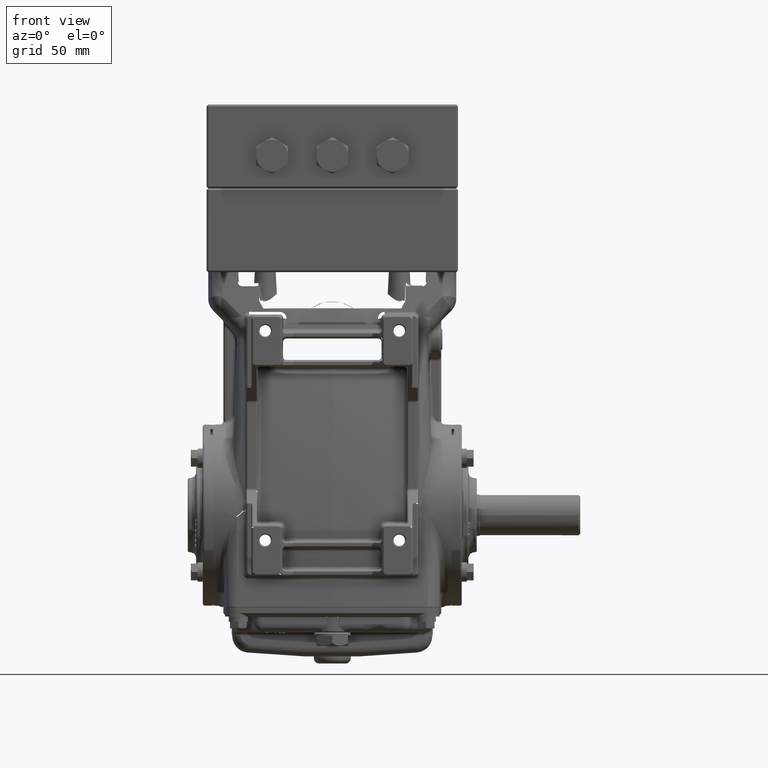
[diagram: clean part render]
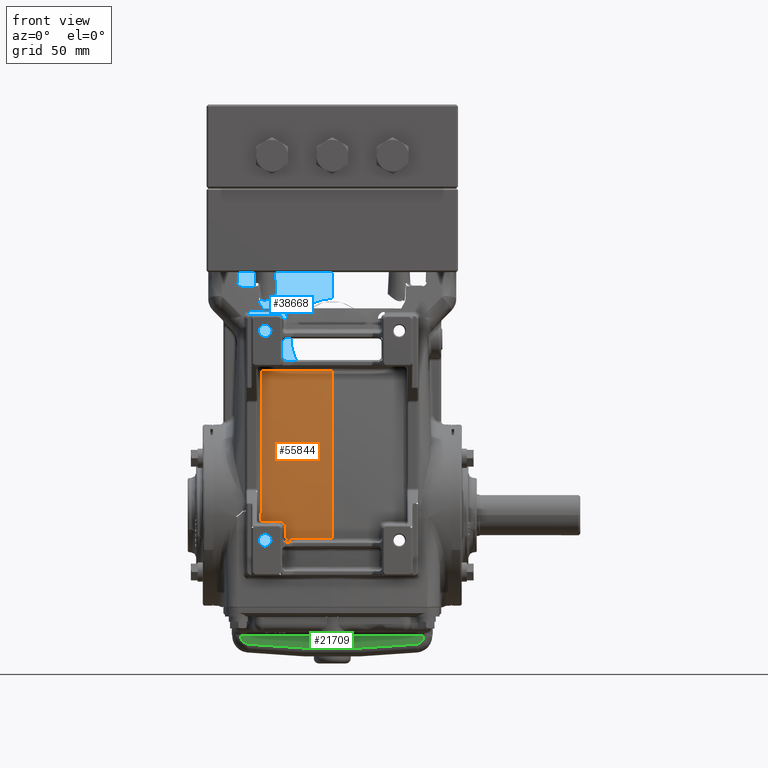
[diagram: same view with three faces highlighted in distinct colors, each labeled with its STEP entity id]
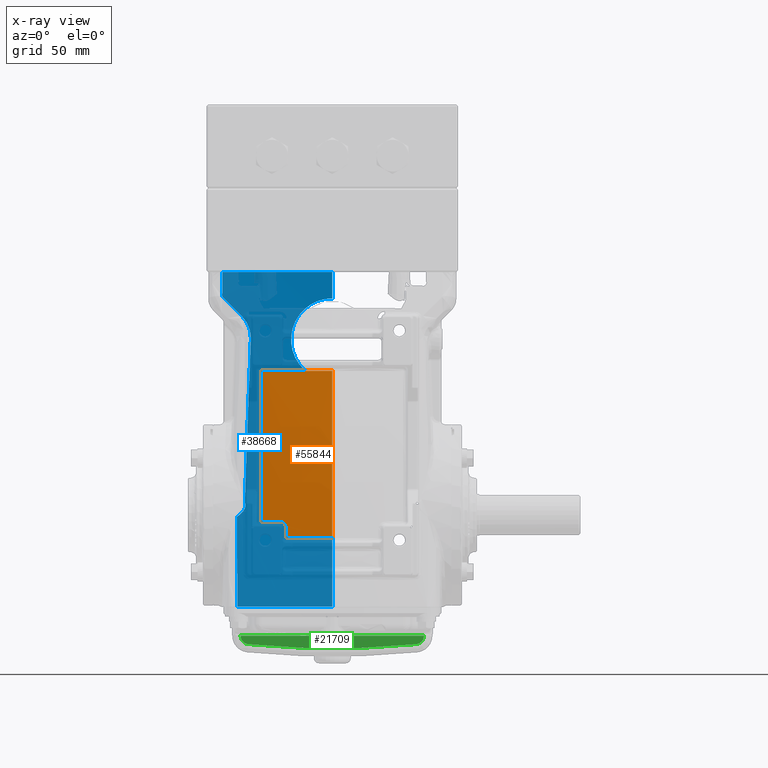
[diagram: x-ray of the same camera — body ghosted, the three highlighted faces saturated]
A machine part, front view with three faces highlighted in distinct colors.
The next image is the same camera in x-ray (body ghosted, the three faces saturated) — at least one of them is partly hidden behind the body in this view.
Their STEP definitions:

[orange] entity #55844 — the highlighted face is a freeform B-spline surface patch.
#234 = CARTESIAN_POINT ( 'NONE',  ( -0.2418360551790647017, -1.930064199602339103, 3.127925920230748780 ) ) ;
#743 = EDGE_LOOP ( 'NONE', ( #53683, #19891, #12669, #41609, #21435, #13286, #26564 ) ) ;
#1107 = CARTESIAN_POINT ( 'NONE',  ( -1.240444894278595944, -2.234850677969940413, -0.1501769756821681734 ) ) ;
#1199 = CARTESIAN_POINT ( 'NONE',  ( -4.438784194610900819E-16, -2.306496805849697296, -0.5440526558611742391 ) ) ;
#2703 = EDGE_CURVE ( 'NONE', #16992, #58968, #16504, .T. ) ;
#2854 = CARTESIAN_POINT ( 'NONE',  ( 2.832087334218518215, -1.704813401921120075, 3.127925920230760770 ) ) ;
#3266 = CARTESIAN_POINT ( 'NONE',  ( 1.602354164347848275, -2.360792373919398557, -2.165354330708661568 ) ) ;
#3307 = CARTESIAN_POINT ( 'NONE',  ( -1.671499988180573437, -2.204385450591111351, -0.1498612659050825024 ) ) ;
#3682 = CARTESIAN_POINT ( 'NONE',  ( 0.7853088048963520196, -1.913828282296069494, 3.127925920230730128 ) ) ;
#4115 = CARTESIAN_POINT ( 'NONE',  ( 1.091501189288766271, -2.263308735351801104, 0.4897784465330011217 ) ) ;
#4543 = CARTESIAN_POINT ( 'NONE',  ( 2.234415192802542194, -2.147607685230842556, 0.4897784465330246584 ) ) ;
#4960 = CARTESIAN_POINT ( 'NONE',  ( -2.283695148368135364, -2.140796000541713706, 0.4897784465330153325 ) ) ;
#5391 = CARTESIAN_POINT ( 'NONE',  ( -2.012704400865600096, -1.251118121441595177, 5.708661417322824505 ) ) ;
#5816 = CARTESIAN_POINT ( 'NONE',  ( -1.161614335099258266, -1.892574789840514082, 3.127925920230770540 ) ) ;
#6249 = CARTESIAN_POINT ( 'NONE',  ( 0.1449627675236093149, -1.299212598425193654, 5.708661417322835163 ) ) ;
#6679 = CARTESIAN_POINT ( 'NONE',  ( -1.130488594888034770, -2.260970933480431988, 0.4897784465330229930 ) ) ;
#7113 = CARTESIAN_POINT ( 'NONE',  ( -1.084030175641961691, -2.258080956032562980, -0.3076871936120910700 ) ) ;
#7462 = CARTESIAN_POINT ( 'NONE',  ( -1.084030175641961691, -2.258080956032562980, -0.3076871936120910700 ) ) ;
#9052 = CARTESIAN_POINT ( 'NONE',  ( -3.880358019103940263E-16, -1.793953829572055847, 3.388778491068083820 ) ) ;
#9712 = CARTESIAN_POINT ( 'NONE',  ( 1.895214259565355164, -1.827571154474286530, 3.127925920230762102 ) ) ;
#10114 = CARTESIAN_POINT ( 'NONE',  ( 2.913386025391116796, -2.048762232609160350, 0.4897784465330197179 ) ) ;
#10529 = CARTESIAN_POINT ( 'NONE',  ( 2.414281635307335083, -2.308400903803342619, -2.165354330708661568 ) ) ;
#11787 = CARTESIAN_POINT ( 'NONE',  ( -1.789341252083286316, -1.261249471572276626, 5.708661417322813847 ) ) ;
#12210 = CARTESIAN_POINT ( 'NONE',  ( -1.523571933390371225, -1.864023738764603477, 3.127925920230739010 ) ) ;
#12637 = CARTESIAN_POINT ( 'NONE',  ( -0.4731394191495167378, -2.398237061164401940, -2.165354330708661568 ) ) ;
#12669 = ORIENTED_EDGE ( 'NONE', *, *, #31513, .F. ) ;
#13062 = CARTESIAN_POINT ( 'NONE',  ( 0.1449928827331219139, -1.931427949591510096, 3.127925920230758550 ) ) ;
#13286 = ORIENTED_EDGE ( 'NONE', *, *, #2703, .F. ) ;
#13945 = CARTESIAN_POINT ( 'NONE',  ( -1.170809080665529578, -2.240468819262972477, -0.1662471103388179217 ) ) ;
#14779 = CARTESIAN_POINT ( 'NONE',  ( -1.161814723588219911, -2.241433458655237132, -0.1711033893030866615 ) ) ;
#14792 = EDGE_CURVE ( 'NONE', #69406, #62883, #45704, .T. ) ;
#15203 = CARTESIAN_POINT ( 'NONE',  ( -1.091960265938938246, -2.253119158052579785, -0.2568951499013944484 ) ) ;
#15745 = CARTESIAN_POINT ( 'NONE',  ( -1.663672434191497240, -1.730195569268732747, 3.388363233297321475 ) ) ;
#16125 = CARTESIAN_POINT ( 'NONE',  ( 2.450684691601668241, -2.118214908375335881, 0.4897784465330197179 ) ) ;
#16504 = B_SPLINE_CURVE_WITH_KNOTS ( 'NONE', 3,
 ( #16524, #55500, #70060, #18200, #36239, #22966, #83330, #44343, #63217, #37081 ),
 .UNSPECIFIED., .F., .F.,
 ( 4, 2, 2, 2, 4 ),
 ( 0.06024417320094749978, 0.08542293328770995953, 0.1106016933744723985, 0.1357804534612348513, 0.1609592135479973041 ),
 .UNSPECIFIED. ) ;
#16524 = CARTESIAN_POINT ( 'NONE',  ( -3.880358019103940263E-16, -1.793953829572055847, 3.388778491068083820 ) ) ;
#16550 = FACE_OUTER_BOUND ( 'NONE', #743, .T. ) ;
#16955 = CARTESIAN_POINT ( 'NONE',  ( 2.663295530942337397, -2.288034568519342837, -2.165354330708661568 ) ) ;
#16992 = VERTEX_POINT ( 'NONE', #77729 ) ;
#17379 = CARTESIAN_POINT ( 'NONE',  ( 1.741295670112182004, -1.263397575016607766, 5.708661417322819176 ) ) ;
#17805 = CARTESIAN_POINT ( 'NONE',  ( 0.4056649939589591081, -1.297898323476696980, 5.708661417322884901 ) ) ;
#18200 = CARTESIAN_POINT ( 'NONE',  ( 4.429618779532718446E-16, -2.010167427803502438, 2.084183344497465118 ) ) ;
#18215 = CARTESIAN_POINT ( 'NONE',  ( -2.131484495458455086, -1.801026039677051660, 3.127925920230756329 ) ) ;
#18640 = CARTESIAN_POINT ( 'NONE',  ( -2.511391663655031969, -1.752002329188381724, 3.127925920230767431 ) ) ;
#19065 = CARTESIAN_POINT ( 'NONE',  ( -2.848460234453432882, -2.059014184365170586, 0.4897784465330218828 ) ) ;
#19490 = CARTESIAN_POINT ( 'NONE',  ( -2.729947521028413426, -1.210496205736398601, 5.708661417322848486 ) ) ;
#19891 = ORIENTED_EDGE ( 'NONE', *, *, #44993, .F. ) ;
#19916 = CARTESIAN_POINT ( 'NONE',  ( -2.369125755900590491, -1.232386614232148236, 5.708661417322822729 ) ) ;
#20894 = CARTESIAN_POINT ( 'NONE',  ( -1.084498845193367922, -2.278379151644223111, -0.5438560755862406060 ) ) ;
#21336 = CARTESIAN_POINT ( 'NONE',  ( -1.084082905692057119, -2.260424564412967463, -0.3341032687350067865 ) ) ;
#21435 = ORIENTED_EDGE ( 'NONE', *, *, #61928, .F. ) ;
#21619 = B_SPLINE_SURFACE_WITH_KNOTS ( 'NONE', 3, 3, ( 
 ( #61561, #10114, #49941, #75624 ),
 ( #37100, #55102, #2854, #81220 ),
 ( #16955, #23406, #68811, #61978 ),
 ( #10529, #16125, #42678, #29017 ),
 ( #36259, #4543, #76048, #43095 ),
 ( #36679, #74795, #42266, #62819 ),
 ( #43939, #68413, #9712, #30681 ),
 ( #3266, #56786, #62392, #17379 ),
 ( #82910, #29428, #24253, #50367 ),
 ( #43514, #4115, #76479, #30270 ),
 ( #81634, #22991, #3682, #56366 ),
 ( #49101, #29842, #55943, #17805 ),
 ( #82060, #64932, #13062, #6249 ),
 ( #37940, #84196, #77762, #70941 ),
 ( #32817, #78612, #234, #38780 ),
 ( #12637, #32386, #83769, #31535 ),
 ( #77334, #39195, #52053, #65352 ),
 ( #57637, #6679, #5816, #78188 ),
 ( #25537, #26392, #12210, #83345 ),
 ( #46060, #58486, #76897, #11787 ),
 ( #64078, #24676, #37517, #5391 ),
 ( #63654, #52477, #18215, #38370 ),
 ( #50782, #4960, #25108, #19916 ),
 ( #44361, #51197, #18640, #44780 ),
 ( #64502, #72202, #51626, #19490 ),
 ( #31955, #19065, #57215, #25972 ),
 ( #58068, #45206, #71364, #84629 ) ),
 .UNSPECIFIED., .F., .F., .F.,
 ( 4, 1, 1, 1, 1, 1, 1, 1, 1, 1, 1, 2, 1, 1, 1, 1, 1, 1, 1, 1, 1, 1, 1, 4 ),
 ( 4, 4 ),
 ( 0.1820721574386664487, 0.1959246563835279065, 0.2035427212275890407, 0.2193976784518300027, 0.2310405802590582147, 0.2359332488469739197, 0.2508238822397266254, 0.2638475608825300855, 0.2796596398469345934, 0.2995163485322877017, 0.3173264764016465178, 0.3410360787193327248, 0.3577107850873240125, 0.3637457220820375925, 0.3805901526646463529, 0.4065920388027236543, 0.4224714650153005291, 0.4387315542144890612, 0.4421836685404009204, 0.4588536976265763512, 0.4664841599499357505, 0.4748837514135769711, 0.4901004416486962612, 0.5000000000000002220 ),
 ( 0.000000000000000000, 1.000000000000000000 ),
 .UNSPECIFIED. ) ;
#22617 = CARTESIAN_POINT ( 'NONE',  ( -1.664976883656835716, -1.831649929826981715, 2.801814109386677742 ) ) ;
#22966 = CARTESIAN_POINT ( 'NONE',  ( -1.758570860625543910E-16, -2.142492827023651625, 1.101084419947147230 ) ) ;
#22991 = CARTESIAN_POINT ( 'NONE',  ( 0.7686644455069936432, -2.282642455870154130, 0.4897784465330022319 ) ) ;
#23406 = CARTESIAN_POINT ( 'NONE',  ( 2.684844189044222507, -2.084204787240041767, 0.4897784465330180526 ) ) ;
#24253 = CARTESIAN_POINT ( 'NONE',  ( 1.424768798695139616, -1.872199753906887310, 3.127925920230765211 ) ) ;
#24676 = CARTESIAN_POINT ( 'NONE',  ( -1.915486056463429509, -2.186527716124487153, 0.4897784465330153325 ) ) ;
#25013 = CARTESIAN_POINT ( 'NONE',  ( -1.240444894278595944, -2.234850677969940413, -0.1501769756821681734 ) ) ;
#25108 = CARTESIAN_POINT ( 'NONE',  ( -2.326410604817644057, -1.776570720899579792, 3.127925920230754109 ) ) ;
#25537 = CARTESIAN_POINT ( 'NONE',  ( -1.438329920831149300, -2.368889522099581146, -2.165354330708661124 ) ) ;
#25681 = B_SPLINE_CURVE_WITH_KNOTS ( 'NONE', 3,
 ( #74846, #54328, #35483, #62027 ),
 .UNSPECIFIED., .F., .F.,
 ( 4, 4 ),
 ( 6.938893903907228378E-18, 0.01097631794368908453 ),
 .UNSPECIFIED. ) ;
#25972 = CARTESIAN_POINT ( 'NONE',  ( -2.862114397419989853, -1.201536995417320064, 5.708661417322835163 ) ) ;
#26112 = EDGE_CURVE ( 'NONE', #35037, #61299, #37354, .T. ) ;
#26392 = CARTESIAN_POINT ( 'NONE',  ( -1.480950586178898964, -2.231805334558659037, 0.4897784465330071724 ) ) ;
#26564 = ORIENTED_EDGE ( 'NONE', *, *, #27622, .F. ) ;
#27622 = EDGE_CURVE ( 'NONE', #61299, #16992, #50391, .T. ) ;
#28366 = CARTESIAN_POINT ( 'NONE',  ( -1.386876609546873196, -1.750932431424213176, 3.388505796847545604 ) ) ;
#28650 = CARTESIAN_POINT ( 'NONE',  ( -1.666263864281610996, -1.921684427565187647, 2.213638218249974088 ) ) ;
#29017 = CARTESIAN_POINT ( 'NONE',  ( 2.523490070267367269, -1.223445930611730459, 5.708661417322837828 ) ) ;
#29428 = CARTESIAN_POINT ( 'NONE',  ( 1.385049581091524207, -2.240167768303173546, 0.4897784465330202730 ) ) ;
#29842 = CARTESIAN_POINT ( 'NONE',  ( 0.3973269798802264163, -2.297068369690841383, 0.4897784465330322634 ) ) ;
#30270 = CARTESIAN_POINT ( 'NONE',  ( 1.150346110494639085, -1.283976514928853341, 5.708661417322789866 ) ) ;
#30681 = CARTESIAN_POINT ( 'NONE',  ( 1.943646624093664954, -1.254362676313991454, 5.708661417322839604 ) ) ;
#30737 = VERTEX_POINT ( 'NONE', #25013 ) ;
#31513 = EDGE_CURVE ( 'NONE', #62883, #30737, #78522, .T. ) ;
#31535 = CARTESIAN_POINT ( 'NONE',  ( -0.4944103712627438973, -1.296520347643934645, 5.708661417322814735 ) ) ;
#31955 = CARTESIAN_POINT ( 'NONE',  ( -2.841633460699814151, -2.272069094341539142, -2.165354330708661124 ) ) ;
#32386 = CARTESIAN_POINT ( 'NONE',  ( -0.4802293617885408650, -2.293642939336622888, 0.4897784465330087822 ) ) ;
#32817 = CARTESIAN_POINT ( 'NONE',  ( -0.2386529819870311930, -2.400899943846322770, -2.165354330708661568 ) ) ;
#33250 = CARTESIAN_POINT ( 'NONE',  ( -1.084009473194327500, -2.257160827383280388, -0.2973159269254638248 ) ) ;
#34101 = CARTESIAN_POINT ( 'NONE',  ( -1.199760974019113746, -2.237762477949927220, -0.1552527717035294685 ) ) ;
#35037 = VERTEX_POINT ( 'NONE', #82996 ) ;
#35483 = CARTESIAN_POINT ( 'NONE',  ( -1.527915027197057851, -2.215913157812103851, -0.1499813333665312443 ) ) ;
#36019 = CARTESIAN_POINT ( 'NONE',  ( -1.109740814995540781, -1.766747696196211859, 3.388606815657019933 ) ) ;
#36239 = CARTESIAN_POINT ( 'NONE',  ( -1.729833203888251239E-16, -2.057036775566738918, 1.756788232823439211 ) ) ;
#36259 = CARTESIAN_POINT ( 'NONE',  ( 2.189576524486962494, -2.325080261920545954, -2.165354330708661568 ) ) ;
#36679 = CARTESIAN_POINT ( 'NONE',  ( 1.989399371181372889, -2.338284998638616496, -2.165354330708661568 ) ) ;
#37081 = CARTESIAN_POINT ( 'NONE',  ( -4.438784194610900819E-16, -2.306496805849697296, -0.5440526558611742391 ) ) ;
#37100 = CARTESIAN_POINT ( 'NONE',  ( 2.812979403157047642, -2.274754709963543675, -2.165354330708661568 ) ) ;
#37354 = B_SPLINE_CURVE_WITH_KNOTS ( 'NONE', 3,
 ( #3307, #70867, #61179, #28650, #22617, #15745 ),
 .UNSPECIFIED., .F., .F.,
 ( 4, 2, 4 ),
 ( 0.000000000000000000, 0.04535818248946323766, 0.09071636497892647533 ),
 .UNSPECIFIED. ) ;
#37517 = CARTESIAN_POINT ( 'NONE',  ( -1.964095400574094485, -1.820132787096655713, 3.127925920230754109 ) ) ;
#37940 = CARTESIAN_POINT ( 'NONE',  ( -0.1020157036538342499, -2.401574803149599369, -2.165354330708661568 ) ) ;
#38370 = CARTESIAN_POINT ( 'NONE',  ( -2.179242577519481916, -1.242815352902275405, 5.708661417322825393 ) ) ;
#38780 = CARTESIAN_POINT ( 'NONE',  ( -0.2434275427088367916, -1.298707510032790280, 5.708661417322822729 ) ) ;
#39195 = CARTESIAN_POINT ( 'NONE',  ( -0.7760523888099777334, -2.282663781206307085, 0.4897784465330197179 ) ) ;
#40504 = CARTESIAN_POINT ( 'NONE',  ( -1.230050119412569920, -2.235483626887897035, -0.1501834840828506212 ) ) ;
#41609 = ORIENTED_EDGE ( 'NONE', *, *, #14792, .F. ) ;
#42266 = CARTESIAN_POINT ( 'NONE',  ( 2.085131295870258139, -1.806265684984527997, 3.127925920230774981 ) ) ;
#42678 = CARTESIAN_POINT ( 'NONE',  ( 2.487087237515684279, -1.755350102494639408, 3.127925920230762102 ) ) ;
#43095 = CARTESIAN_POINT ( 'NONE',  ( 2.324091733874597221, -1.235065584125857319, 5.708661417322855591 ) ) ;
#43514 = CARTESIAN_POINT ( 'NONE',  ( 1.062078202322136677, -2.384053432892072166, -2.165354330708661568 ) ) ;
#43939 = CARTESIAN_POINT ( 'NONE',  ( 1.798349607840901365, -2.349958156103969742, -2.165354330708661568 ) ) ;
#44343 = CARTESIAN_POINT ( 'NONE',  ( -7.186473001584006522E-16, -2.250010485369872804, 0.1149634935245342771 ) ) ;
#44361 = CARTESIAN_POINT ( 'NONE',  ( -2.441314665332592337, -2.306279735125314811, -2.165354330708661124 ) ) ;
#44712 = CARTESIAN_POINT ( 'NONE',  ( -1.663672434191497240, -1.730195569268732747, 3.388363233297321475 ) ) ;
#44780 = CARTESIAN_POINT ( 'NONE',  ( -2.546430131488119031, -1.222062046991427398, 5.708661417322842269 ) ) ;
#44993 = EDGE_CURVE ( 'NONE', #30737, #35037, #25681, .T. ) ;
#45206 = CARTESIAN_POINT ( 'NONE',  ( -2.913385628152181717, -2.048762232609148803, 0.4897784465330224379 ) ) ;
#45704 = B_SPLINE_CURVE_WITH_KNOTS ( 'NONE', 3,
 ( #20894, #53033, #59045, #81545, #59898, #21336, #47454 ),
 .UNSPECIFIED., .F., .F.,
 ( 4, 3, 4 ),
 ( 1.734723475976807094E-18, 0.004000006667516224981, 0.006020819402372753343 ),
 .UNSPECIFIED. ) ;
#46060 = CARTESIAN_POINT ( 'NONE',  ( -1.648708095812247754, -2.358238290425402450, -2.165354330708661124 ) ) ;
#46518 = CARTESIAN_POINT ( 'NONE',  ( -1.189792242981691395, -2.238631070579994109, -0.1583026045091741885 ) ) ;
#47454 = CARTESIAN_POINT ( 'NONE',  ( -1.084030175641961691, -2.258080956032562980, -0.3076871936120910700 ) ) ;
#49101 = CARTESIAN_POINT ( 'NONE',  ( 0.3931574066697895442, -2.399831511276513840, -2.165354330708661568 ) ) ;
#49941 = CARTESIAN_POINT ( 'NONE',  ( 2.913385809642300650, -1.691985680221144150, 3.127925920230762102 ) ) ;
#50367 = CARTESIAN_POINT ( 'NONE',  ( 1.464488406949914445, -1.274012937168635062, 5.708661417322844045 ) ) ;
#50391 = B_SPLINE_CURVE_WITH_KNOTS ( 'NONE', 3,
 ( #54046, #28366, #36019, #62165, #67768, #9052 ),
 .UNSPECIFIED., .F., .F.,
 ( 4, 2, 4 ),
 ( 6.938893903907228378E-18, 0.02115083174250376868, 0.04230166348500753043 ),
 .UNSPECIFIED. ) ;
#50782 = CARTESIAN_POINT ( 'NONE',  ( -2.240980235268056564, -2.321187910974374269, -2.165354330708661124 ) ) ;
#51197 = CARTESIAN_POINT ( 'NONE',  ( -2.476352911878942020, -2.114609130722289176, 0.4897784465330224379 ) ) ;
#51626 = CARTESIAN_POINT ( 'NONE',  ( -2.708159283295321185, -1.723791484228669901, 3.127925920230772761 ) ) ;
#52053 = CARTESIAN_POINT ( 'NONE',  ( -0.7927816049644672569, -1.913850617605292292, 3.127925920230765211 ) ) ;
#52178 = B_SPLINE_CURVE_WITH_KNOTS ( 'NONE', 3,
 ( #1199, #59461, #84309, #59036 ),
 .UNSPECIFIED., .F., .F.,
 ( 4, 4 ),
 ( 1.914418252958704509E-17, 0.02755972158727674690 ),
 .UNSPECIFIED. ) ;
#52477 = CARTESIAN_POINT ( 'NONE',  ( -2.083726086542785794, -2.166614530041787390, 0.4897784465330164427 ) ) ;
#52935 = CARTESIAN_POINT ( 'NONE',  ( -1.136770881183574611, -2.244517018020598886, -0.1892222247075050490 ) ) ;
#53033 = CARTESIAN_POINT ( 'NONE',  ( -1.084395628949245571, -2.274027808519377469, -0.4915433102944287147 ) ) ;
#53683 = ORIENTED_EDGE ( 'NONE', *, *, #26112, .F. ) ;
#54046 = CARTESIAN_POINT ( 'NONE',  ( -1.663672434191497240, -1.730195569268732747, 3.388363233297321475 ) ) ;
#54328 = CARTESIAN_POINT ( 'NONE',  ( -1.384225660618530585, -2.226095713898979866, -0.1500869513334240346 ) ) ;
#55102 = CARTESIAN_POINT ( 'NONE',  ( 2.822533585408711243, -2.063108027997043958, 0.4897784465330197179 ) ) ;
#55500 = CARTESIAN_POINT ( 'NONE',  ( 4.358330601197656172E-16, -1.853113028278692065, 3.063643956405773583 ) ) ;
#55844 = ADVANCED_FACE ( 'NONE', ( #16550 ), #21619, .F. ) ;
#55943 = CARTESIAN_POINT ( 'NONE',  ( 0.4014957656440683587, -1.927885586440233778, 3.127925920230790080 ) ) ;
#56366 = CARTESIAN_POINT ( 'NONE',  ( 0.8019535934125021637, -1.292120820694519612, 5.708661417322794307 ) ) ;
#56786 = CARTESIAN_POINT ( 'NONE',  ( 1.648668314213679542, -2.215500870424770952, 0.4897784465330115022 ) ) ;
#57215 = CARTESIAN_POINT ( 'NONE',  ( -2.855287436206087825, -1.701152819370445712, 3.127925920230766099 ) ) ;
#57637 = CARTESIAN_POINT ( 'NONE',  ( -1.099363582922382898, -2.382977130700381085, -2.165354330708661124 ) ) ;
#58068 = CARTESIAN_POINT ( 'NONE',  ( -2.913385826771654141, -2.265344068576858216, -2.165354330708661124 ) ) ;
#58486 = CARTESIAN_POINT ( 'NONE',  ( -1.695585503688048057, -2.210467917730779330, 0.4897784465330109471 ) ) ;
#58968 = VERTEX_POINT ( 'NONE', #60726 ) ;
#59036 = CARTESIAN_POINT ( 'NONE',  ( -1.084498845193367922, -2.278379151644223111, -0.5438560755862406060 ) ) ;
#59045 = CARTESIAN_POINT ( 'NONE',  ( -1.084292040675105540, -2.269580977062863880, -0.4392384004682781118 ) ) ;
#59374 = CARTESIAN_POINT ( 'NONE',  ( -1.122377073161225924, -2.246647239450680900, -0.2037528214286146999 ) ) ;
#59461 = CARTESIAN_POINT ( 'NONE',  ( -0.3616787861395119874, -2.306496812825876486, -0.5440526561699657870 ) ) ;
#59796 = CARTESIAN_POINT ( 'NONE',  ( -1.088983977023510352, -2.254165694445373180, -0.2667714252498789573 ) ) ;
#59898 = CARTESIAN_POINT ( 'NONE',  ( -1.084135534368267484, -2.262743776373799420, -0.3605215198298847845 ) ) ;
#60637 = CARTESIAN_POINT ( 'NONE',  ( -1.144808578580310376, -2.243454319908962713, -0.1825626556147575130 ) ) ;
#60726 = CARTESIAN_POINT ( 'NONE',  ( -4.438784194610900819E-16, -2.306496805849697296, -0.5440526558611742391 ) ) ;
#61179 = CARTESIAN_POINT ( 'NONE',  ( -1.668855918374695824, -2.079555208578093062, 1.034124399978609610 ) ) ;
#61299 = VERTEX_POINT ( 'NONE', #44712 ) ;
#61561 = CARTESIAN_POINT ( 'NONE',  ( 2.913385826771640374, -2.265344068576862213, -2.165354330708661568 ) ) ;
#61928 = EDGE_CURVE ( 'NONE', #58968, #69406, #52178, .T. ) ;
#61978 = CARTESIAN_POINT ( 'NONE',  ( 2.727940840439589287, -1.210589729325568742, 5.708661417322833387 ) ) ;
#62027 = CARTESIAN_POINT ( 'NONE',  ( -1.671499988180573437, -2.204385450591111351, -0.1498612659050825024 ) ) ;
#62165 = CARTESIAN_POINT ( 'NONE',  ( -0.5550348168314169772, -1.788257067635133257, 3.388743369700574881 ) ) ;
#62392 = CARTESIAN_POINT ( 'NONE',  ( 1.694981807724703637, -1.848142482010726173, 3.127925920230747892 ) ) ;
#62819 = CARTESIAN_POINT ( 'NONE',  ( 2.132997294791505460, -1.245100427256945474, 5.708661417322859144 ) ) ;
#62883 = VERTEX_POINT ( 'NONE', #7462 ) ;
#63217 = CARTESIAN_POINT ( 'NONE',  ( 4.617795764761673671E-16, -2.280336022690061970, -0.2144450474789921235 ) ) ;
#63654 = CARTESIAN_POINT ( 'NONE',  ( -2.035968259211040188, -2.335433637454240152, -2.165354330708661124 ) ) ;
#64078 = CARTESIAN_POINT ( 'NONE',  ( -1.866877324122247384, -2.345940473350990541, -2.165354330708661124 ) ) ;
#64502 = CARTESIAN_POINT ( 'NONE',  ( -2.664582750533178945, -2.288033759751159746, -2.165354330708661124 ) ) ;
#64932 = CARTESIAN_POINT ( 'NONE',  ( 0.1450234440065840680, -2.300768595909192804, 0.4897784465330164427 ) ) ;
#65352 = CARTESIAN_POINT ( 'NONE',  ( -0.8095103919857099539, -1.292140362101247275, 5.708661417322844045 ) ) ;
#66645 = CARTESIAN_POINT ( 'NONE',  ( -1.219837589830072178, -2.236194069783405070, -0.1512179920518048892 ) ) ;
#67768 = CARTESIAN_POINT ( 'NONE',  ( -0.2775766395478562742, -1.793953827746439966, 3.388778490940969945 ) ) ;
#68413 = CARTESIAN_POINT ( 'NONE',  ( 1.846782245487664120, -2.194251839819475247, 0.4897784465330191628 ) ) ;
#68811 = CARTESIAN_POINT ( 'NONE',  ( 2.706392384829026998, -1.723957603235172220, 3.127925920230758550 ) ) ;
#69406 = VERTEX_POINT ( 'NONE', #75426 ) ;
#70060 = CARTESIAN_POINT ( 'NONE',  ( 4.458260523316134090E-16, -1.908191123398606193, 2.737698722522007078 ) ) ;
#70867 = CARTESIAN_POINT ( 'NONE',  ( -1.670161274976123655, -2.147400697531644642, 0.4426558265975095718 ) ) ;
#70941 = CARTESIAN_POINT ( 'NONE',  ( -0.1019499836553658945, -1.299212598425201870, 5.708661417322835163 ) ) ;
#71364 = CARTESIAN_POINT ( 'NONE',  ( -2.913385843901003192, -1.691985680221069988, 3.127925920230766099 ) ) ;
#72202 = CARTESIAN_POINT ( 'NONE',  ( -2.686370785910845438, -2.084068835673706488, 0.4897784465330251580 ) ) ;
#73483 = CARTESIAN_POINT ( 'NONE',  ( -1.115924110286393489, -2.247725094233928189, -0.2116756261339111378 ) ) ;
#73906 = CARTESIAN_POINT ( 'NONE',  ( -1.084999455407734015, -2.256193883383995846, -0.2870588723600730474 ) ) ;
#74316 = CARTESIAN_POINT ( 'NONE',  ( -1.099710183924679230, -2.250997816146371289, -0.2380024238543103632 ) ) ;
#74795 = CARTESIAN_POINT ( 'NONE',  ( 2.037265628463426737, -2.172062645620671084, 0.4897784465330257131 ) ) ;
#74846 = CARTESIAN_POINT ( 'NONE',  ( -1.240444894278595944, -2.234850677969940413, -0.1501769756821681734 ) ) ;
#75426 = CARTESIAN_POINT ( 'NONE',  ( -1.084498845193367922, -2.278379151644223111, -0.5438560755862406060 ) ) ;
#75624 = CARTESIAN_POINT ( 'NONE',  ( 2.913385826771655474, -1.197969208711458178, 5.708661417322835163 ) ) ;
#76048 = CARTESIAN_POINT ( 'NONE',  ( 2.279253307875170886, -1.782954428840536565, 3.127925920230772761 ) ) ;
#76479 = CARTESIAN_POINT ( 'NONE',  ( 1.120923444174017236, -1.894876309026141348, 3.127925920230727019 ) ) ;
#76897 = CARTESIAN_POINT ( 'NONE',  ( -1.742463560137305301, -1.843263351871661904, 3.127925920230746559 ) ) ;
#77334 = CARTESIAN_POINT ( 'NONE',  ( -0.7593239362273180859, -2.393134938270132572, -2.165354330708661568 ) ) ;
#77729 = CARTESIAN_POINT ( 'NONE',  ( -3.880358019103940263E-16, -1.793953829572055847, 3.388778491068083820 ) ) ;
#77762 = CARTESIAN_POINT ( 'NONE',  ( -0.1019719231317475217, -1.931427949591510096, 3.127925920230758550 ) ) ;
#78188 = CARTESIAN_POINT ( 'NONE',  ( -1.192739666030864010, -1.282981708238520646, 5.708661417322852927 ) ) ;
#78522 = B_SPLINE_CURVE_WITH_KNOTS ( 'NONE', 3,
 ( #7113, #33250, #73906, #59796, #15203, #74316, #80316, #73483, #59374, #52935, #60637, #14779, #13945, #46518, #34101, #66645, #40504, #1107 ),
 .UNSPECIFIED., .F., .F.,
 ( 4, 2, 2, 2, 2, 2, 2, 2, 4 ),
 ( 0.000000000000000000, 0.0007886128827416663892, 0.001577225765483332778, 0.002365838648224999168, 0.003154451530966665557, 0.003943064413708331946, 0.004731677296449998335, 0.005520290179191664724, 0.006308903061933331113 ),
 .UNSPECIFIED. ) ;
#78612 = CARTESIAN_POINT ( 'NONE',  ( -0.2402441229366550357, -2.299342540392105505, 0.4897784465330115022 ) ) ;
#80316 = CARTESIAN_POINT ( 'NONE',  ( -1.104538450792835302, -2.249909094682416288, -0.2288645540813238899 ) ) ;
#81220 = CARTESIAN_POINT ( 'NONE',  ( 2.841641326625985009, -1.202961639721772391, 5.708661417322835163 ) ) ;
#81545 = CARTESIAN_POINT ( 'NONE',  ( -1.084188063796198698, -2.265038599171059541, -0.3869418781655847295 ) ) ;
#81634 = CARTESIAN_POINT ( 'NONE',  ( 0.7520193225572906481, -2.393118508680737833, -2.165354330708661568 ) ) ;
#82060 = CARTESIAN_POINT ( 'NONE',  ( 0.1450532115828236657, -2.401574803149604254, -2.165354330708661568 ) ) ;
#82910 = CARTESIAN_POINT ( 'NONE',  ( 1.345329668388606015, -2.372960332906651093, -2.165354330708661568 ) ) ;
#82996 = CARTESIAN_POINT ( 'NONE',  ( -1.671499988180573437, -2.204385450591111351, -0.1498612659050825024 ) ) ;
#83330 = CARTESIAN_POINT ( 'NONE',  ( -7.157645399727127983E-16, -2.181088388933470679, 0.7727195738630786570 ) ) ;
#83345 = CARTESIAN_POINT ( 'NONE',  ( -1.566192897389181660, -1.270407001257441548, 5.708661417322804965 ) ) ;
#83769 = CARTESIAN_POINT ( 'NONE',  ( -0.4873200862093268193, -1.924545779200158346, 3.127925920230743451 ) ) ;
#84196 = CARTESIAN_POINT ( 'NONE',  ( -0.1019934165441795937, -2.300768595909192804, 0.4897784465330164427 ) ) ;
#84309 = CARTESIAN_POINT ( 'NONE',  ( -0.7232950173701823138, -2.296882259659634329, -0.5439939882487848655 ) ) ;
#84629 = CARTESIAN_POINT ( 'NONE',  ( -2.913385826771652809, -1.197969208711458178, 5.708661417322836940 ) ) ;

[blue] entity #38668 — the highlighted face is a freeform B-spline surface patch.
#132 = CARTESIAN_POINT ( 'NONE',  ( 2.913385843901003192, 1.691985680221068877, 3.127925920230767431 ) ) ;
#562 = CARTESIAN_POINT ( 'NONE',  ( 0.4873200862093256536, 1.924545779200155238, 3.127925920230781642 ) ) ;
#801 = CARTESIAN_POINT ( 'NONE',  ( -0.9644831214159411692, 1.618667759299428743, 4.199342229287560180 ) ) ;
#949 = ORIENTED_EDGE ( 'NONE', *, *, #55211, .F. ) ;
#978 = CARTESIAN_POINT ( 'NONE',  ( 2.131484495458442208, 1.801026039677056101, 3.127925920230771872 ) ) ;
#1221 = CARTESIAN_POINT ( 'NONE',  ( -2.053194142686559864, 2.123507996596452063, 0.3041950259637326570 ) ) ;
#1225 = CARTESIAN_POINT ( 'NONE',  ( -0.5933181033504502100, 1.791224152829905769, 3.356988519879162247 ) ) ;
#1409 = CARTESIAN_POINT ( 'NONE',  ( 1.742463560137298861, 1.843263351871661682, 3.127925920230766099 ) ) ;
#1644 = CARTESIAN_POINT ( 'NONE',  ( -0.7307716510373689633, 1.763420215501402044, 3.486847099895348912 ) ) ;
#2065 = CARTESIAN_POINT ( 'NONE',  ( -0.5160278655444371365, 1.474502422586200012, 4.941722194200439233 ) ) ;
#2167 = CARTESIAN_POINT ( 'NONE',  ( -1.741295670112191551, 1.263397575016612429, 5.708661417322822729 ) ) ;
#2471 = CARTESIAN_POINT ( 'NONE',  ( -0.7716760308857145700, 1.520005616499535250, 4.707190689330423616 ) ) ;
#2581 = CARTESIAN_POINT ( 'NONE',  ( -0.8019535934125048282, 1.292120820694525829, 5.708661417322820952 ) ) ;
#3397 = CARTESIAN_POINT ( 'NONE',  ( -7.629761195857950561E-17, 1.982659120498347916, 2.275230264263858437 ) ) ;
#4010 = CARTESIAN_POINT ( 'NONE',  ( -2.450684691601683340, 2.118214908375344319, 0.4897784465330273784 ) ) ;
#4344 = CARTESIAN_POINT ( 'NONE',  ( 3.450959980213676461E-17, 1.299212598425197429, 5.708661417322835163 ) ) ;
#4361 = CARTESIAN_POINT ( 'NONE',  ( -1.933107383546206481, 1.538854528032835178, 4.328488172486088637 ) ) ;
#4436 = CARTESIAN_POINT ( 'NONE',  ( -2.706392384829025666, 1.723957603235178659, 3.127925920230774093 ) ) ;
#4579 = CARTESIAN_POINT ( 'NONE',  ( -1.274984242628392523E-15, 1.445461229294053629, 5.090103064882366191 ) ) ;
#4755 = CARTESIAN_POINT ( 'NONE',  ( -2.118289369877802031, 2.142698611774983775, 0.06166686124301477140 ) ) ;
#4864 = CARTESIAN_POINT ( 'NONE',  ( -2.132997294791504572, 1.245100427256950137, 5.708661417322847598 ) ) ;
#5094 = CARTESIAN_POINT ( 'NONE',  ( -8.016133500422119341E-17, 2.106884914907209971, 1.393649014934724262 ) ) ;
#5287 = CARTESIAN_POINT ( 'NONE',  ( -1.091501189288772045, 2.263308735351807321, 0.4897784465330322634 ) ) ;
#5333 = ORIENTED_EDGE ( 'NONE', *, *, #65569, .F. ) ;
#5707 = CARTESIAN_POINT ( 'NONE',  ( -2.812979403157050307, 2.274754709963536570, -2.165354330708661568 ) ) ;
#5774 = VERTEX_POINT ( 'NONE', #51621 ) ;
#6144 = CARTESIAN_POINT ( 'NONE',  ( 0.7927816049644650365, 1.913850617605289184, 3.127925920230762991 ) ) ;
#6573 = CARTESIAN_POINT ( 'NONE',  ( 1.130488594888032106, 2.260970933480409784, 0.4897784465330104475 ) ) ;
#6992 = CARTESIAN_POINT ( 'NONE',  ( 2.546430131488103932, 1.222062046991425621, 5.708661417322830722 ) ) ;
#7180 = CARTESIAN_POINT ( 'NONE',  ( -2.244154975526539531, 2.140548279587432656, -0.04263853052005076028 ) ) ;
#7229 = CARTESIAN_POINT ( 'NONE',  ( -0.6422591814072775573, 1.782550782372620102, 3.397208525460236661 ) ) ;
#7416 = CARTESIAN_POINT ( 'NONE',  ( 1.161614335099249162, 1.892574789840504090, 3.127925920230731460 ) ) ;
#7447 = CARTESIAN_POINT ( 'NONE',  ( -2.131860052545362816, 1.455898494205196236, 4.682448122466263740 ) ) ;
#7659 = CARTESIAN_POINT ( 'NONE',  ( -0.9599596636209278833, 1.609408501972310779, 4.246538372213343848 ) ) ;
#7834 = CARTESIAN_POINT ( 'NONE',  ( 0.2434275427088355981, 1.298707510032789170, 5.708661417322846710 ) ) ;
#7859 = CARTESIAN_POINT ( 'NONE',  ( -2.096129776760800034, 1.465843969454385887, 4.644982890269668374 ) ) ;
#8076 = CARTESIAN_POINT ( 'NONE',  ( -0.9348349137624539784, 1.683629070884895773, 3.872875714643420064 ) ) ;
#8487 = CARTESIAN_POINT ( 'NONE',  ( -0.9554301720631646067, 1.603327808052289916, 4.277628539086540727 ) ) ;
#8911 = CARTESIAN_POINT ( 'NONE',  ( -0.9424672581809910854, 1.677446185038370174, 3.903529103138577483 ) ) ;
#10427 = CARTESIAN_POINT ( 'NONE',  ( -2.189576524486965603, 2.325080261920541513, -2.165354330708661568 ) ) ;
#11266 = CARTESIAN_POINT ( 'NONE',  ( -0.4014957656440674150, 1.927885586440226895, 3.127925920230758550 ) ) ;
#12101 = CARTESIAN_POINT ( 'NONE',  ( -0.3973269798802252506, 2.297068369690827616, 0.4897784465330241033 ) ) ;
#12105 = B_SPLINE_CURVE_WITH_KNOTS ( 'NONE', 3,
 ( #19839, #58402, #58840, #45976, #32300, #71279 ),
 .UNSPECIFIED., .F., .F.,
 ( 4, 2, 4 ),
 ( 2.860979249076398407E-17, 0.0003987412940839052140, 0.0007974825881677818050 ),
 .UNSPECIFIED. ) ;
#12528 = CARTESIAN_POINT ( 'NONE',  ( 2.369125755900576280, 1.232386614232151567, 5.708661417322828946 ) ) ;
#12740 = CARTESIAN_POINT ( 'NONE',  ( -2.586362804630043755, 1.329823753665074770, 5.151270064738946886 ) ) ;
#12961 = CARTESIAN_POINT ( 'NONE',  ( 2.913385628152182161, 2.048762232609131040, 0.4897784465330273784 ) ) ;
#12994 = CARTESIAN_POINT ( 'NONE',  ( 1.889681467910129429E-08, 1.398385728573260156, 5.296640703349395629 ) ) ;
#13171 = CARTESIAN_POINT ( 'NONE',  ( -1.856596089375251557, 2.347836400576190474, -2.152851640792331267 ) ) ;
#13189 = ORIENTED_EDGE ( 'NONE', *, *, #70848, .F. ) ;
#13631 = CARTESIAN_POINT ( 'NONE',  ( -2.052668002272747927, 2.123788338986134505, 0.3020877454172159471 ) ) ;
#13815 = CARTESIAN_POINT ( 'NONE',  ( 0.4731394191495172374, 2.398237061164405937, -2.165354330708661568 ) ) ;
#14034 = CARTESIAN_POINT ( 'NONE',  ( -2.227242516835840735, 2.321209563805544995, -2.152759186897168053 ) ) ;
#14058 = CARTESIAN_POINT ( 'NONE',  ( -0.8408534539225611670, 1.540288871572165430, 4.602309156754099462 ) ) ;
#14237 = CARTESIAN_POINT ( 'NONE',  ( 2.319896085376018283E-17, 1.931427949591510762, 3.127925920230771872 ) ) ;
#14399 = VERTEX_POINT ( 'NONE', #45421 ) ;
#14477 = CARTESIAN_POINT ( 'NONE',  ( -0.4326564059834072662, 1.465345589794402548, 4.988646893029095253 ) ) ;
#14849 = CARTESIAN_POINT ( 'NONE',  ( -2.239546380805880421, 2.213566551445498298, -0.7448622437288107134 ) ) ;
#14894 = CARTESIAN_POINT ( 'NONE',  ( -0.7706295694341124269, 1.753039094228238559, 3.535988971856116603 ) ) ;
#15314 = CARTESIAN_POINT ( 'NONE',  ( -0.2533926817482556326, 1.828505556673673649, 3.187054628844162352 ) ) ;
#15323 = VERTEX_POINT ( 'NONE', #4344 ) ;
#15424 = CARTESIAN_POINT ( 'NONE',  ( -1.943646624093668951, 1.254362676313996783, 5.708661417322836940 ) ) ;
#15599 = VERTEX_POINT ( 'NONE', #39284 ) ;
#15737 = CARTESIAN_POINT ( 'NONE',  ( -0.6433779996093795805, 1.492703628457151543, 4.848150405952392994 ) ) ;
#16143 = CARTESIAN_POINT ( 'NONE',  ( -2.427290454833202382, 1.376123305585299272, 4.976396351799645679 ) ) ;
#16268 = CARTESIAN_POINT ( 'NONE',  ( -4.460639496743511363E-07, 1.299212598425199872, 5.708661417322837828 ) ) ;
#17272 = CARTESIAN_POINT ( 'NONE',  ( -2.414281635307358176, 2.308400903803341286, -2.165354330708661568 ) ) ;
#17600 = CARTESIAN_POINT ( 'NONE',  ( -2.038984479122262883, 2.132266257378623298, 0.2358320036178835899 ) ) ;
#17703 = CARTESIAN_POINT ( 'NONE',  ( -0.8019535934125048282, 1.292120820694525829, 5.708661417322820952 ) ) ;
#17967 = VERTEX_POINT ( 'NONE', #47954 ) ;
#18016 = CARTESIAN_POINT ( 'NONE',  ( -2.043608718765486110, 2.136991848240979763, 0.1870679647836677173 ) ) ;
#18119 = CARTESIAN_POINT ( 'NONE',  ( -1.424768798695146943, 1.872199753906897080, 3.127925920230782530 ) ) ;
#18535 = CARTESIAN_POINT ( 'NONE',  ( -0.3931574066697886560, 2.399831511276485863, -2.165354330708661568 ) ) ;
#18956 = CARTESIAN_POINT ( 'NONE',  ( -2.234415192802543526, 2.147607685230850105, 0.4897784465330339287 ) ) ;
#19389 = CARTESIAN_POINT ( 'NONE',  ( 1.099363582922386673, 2.382977130700372648, -2.165354330708661568 ) ) ;
#19815 = CARTESIAN_POINT ( 'NONE',  ( 2.841633460699813707, 2.272069094341538253, -2.165354330708661568 ) ) ;
#19839 = CARTESIAN_POINT ( 'NONE',  ( -2.586362804630043755, 1.329823753665074770, 5.151270064738946886 ) ) ;
#20235 = CARTESIAN_POINT ( 'NONE',  ( 1.480950586178896522, 2.231805334558643494, 0.4897784465330393688 ) ) ;
#20492 = CARTESIAN_POINT ( 'NONE',  ( -0.9064667844229428173, 1.701914183292754679, 3.782771815187817133 ) ) ;
#20665 = CARTESIAN_POINT ( 'NONE',  ( 2.326410604817633843, 1.776570720899578237, 3.127925920230762991 ) ) ;
#20910 = CARTESIAN_POINT ( 'NONE',  ( -0.7895195932548942919, 1.747619812788680616, 3.561772888436794737 ) ) ;
#21129 = CARTESIAN_POINT ( 'NONE',  ( -1.954921401464340347, 1.523061787492009378, 4.402702356222214064 ) ) ;
#21189 = VERTEX_POINT ( 'NONE', #80012 ) ;
#21351 = CARTESIAN_POINT ( 'NONE',  ( -0.2222672595200096413, 1.830271744323471061, 3.179138551028550363 ) ) ;
#21458 = CARTESIAN_POINT ( 'NONE',  ( -2.484440817764909770, 1.225721470078472430, 5.708661417322824505 ) ) ;
#21774 = CARTESIAN_POINT ( 'NONE',  ( -0.03226603085782392411, 1.445560164890504540, 5.089598979694467396 ) ) ;
#22190 = CARTESIAN_POINT ( 'NONE',  ( -0.7107172724088218763, 1.505913706992815237, 4.779993862681470418 ) ) ;
#22713 = CARTESIAN_POINT ( 'NONE',  ( -2.576322194412808742, 1.220071041648136623, 5.708661417322824505 ) ) ;
#23726 = CARTESIAN_POINT ( 'NONE',  ( -1.989399371181384657, 2.338284998638617829, -2.165354330708661568 ) ) ;
#24153 = CARTESIAN_POINT ( 'NONE',  ( -2.822533585408712575, 2.063108027997046179, 0.4897784465330322634 ) ) ;
#24475 = CARTESIAN_POINT ( 'NONE',  ( -2.141518609228189707, 2.142761626880099524, 0.03843709217641020498 ) ) ;
#24578 = CARTESIAN_POINT ( 'NONE',  ( -2.487087237515690497, 1.755350102494653619, 3.127925920230767431 ) ) ;
#25004 = CARTESIAN_POINT ( 'NONE',  ( -1.345329668388619115, 2.372960332906649317, -2.165354330708661568 ) ) ;
#25033 = ORIENTED_EDGE ( 'NONE', *, *, #73334, .F. ) ;
#25326 = CARTESIAN_POINT ( 'NONE',  ( -2.086663981160564951, 2.141946370163338997, 0.09931180522621595175 ) ) ;
#25866 = CARTESIAN_POINT ( 'NONE',  ( 1.695585503688044504, 2.210467917730762899, 0.4897784465330279335 ) ) ;
#26187 = CARTESIAN_POINT ( 'NONE',  ( -2.077214970515645298, 2.141491778610241425, 0.1126631891245921807 ) ) ;
#26284 = CARTESIAN_POINT ( 'NONE',  ( 2.913385826771653697, 1.197969208711458622, 5.708661417322836940 ) ) ;
#26507 = B_SPLINE_CURVE_WITH_KNOTS ( 'NONE', 3,
 ( #7180, #14849, #78705, #41420 ),
 .UNSPECIFIED., .F., .F.,
 ( 4, 4 ),
 ( 0.001088878662660275332, 0.05488596565795428317 ),
 .UNSPECIFIED. ) ;
#26708 = CARTESIAN_POINT ( 'NONE',  ( 0.1020157036538342776, 2.401574803149599813, -2.165354330708661568 ) ) ;
#26959 = CARTESIAN_POINT ( 'NONE',  ( -0.2689366647110956188, 1.827531859230574263, 3.191424109076885784 ) ) ;
#27142 = CARTESIAN_POINT ( 'NONE',  ( 2.179242577519465929, 1.242815352902282511, 5.708661417322839604 ) ) ;
#27383 = CARTESIAN_POINT ( 'NONE',  ( -2.047901024090820865, 2.126340813064907742, 0.2828387324246887657 ) ) ;
#27561 = CARTESIAN_POINT ( 'NONE',  ( 2.664582750533174949, 2.288033759751162410, -2.165354330708661568 ) ) ;
#27799 = CARTESIAN_POINT ( 'NONE',  ( -0.9169727454114502407, 1.695898520020459488, 3.812303417004026418 ) ) ;
#28215 = CARTESIAN_POINT ( 'NONE',  ( -0.9374267225573131856, 1.585341853739806961, 4.369806067430779706 ) ) ;
#28739 = CARTESIAN_POINT ( 'NONE',  ( -2.032358843832670292, 2.056376370780970575, 0.9443930657390871009 ) ) ;
#28755 = CARTESIAN_POINT ( 'NONE',  ( -2.324091733874594556, 1.235065584125860205, 5.708661417322837828 ) ) ;
#29033 = CARTESIAN_POINT ( 'NONE',  ( -2.131860052545362816, 1.455898494205196236, 4.682448122466263740 ) ) ;
#29258 = CARTESIAN_POINT ( 'NONE',  ( -1.927611122228681584, 1.544016712790777790, 4.303500443620481342 ) ) ;
#29460 = CARTESIAN_POINT ( 'NONE',  ( -0.007991942765918323699, 1.445461232153651077, 5.090103052336266920 ) ) ;
#29548 = CARTESIAN_POINT ( 'NONE',  ( -2.010220420681156472, 1.978156669164423676, 1.583179683012722716 ) ) ;
#30164 = CARTESIAN_POINT ( 'NONE',  ( -0.1449627675236095370, 1.299212598425194765, 5.708661417322837828 ) ) ;
#30580 = CARTESIAN_POINT ( 'NONE',  ( -2.913385826771655474, 1.197969208711458622, 5.708661417322835163 ) ) ;
#31000 = CARTESIAN_POINT ( 'NONE',  ( -1.648668314213691533, 2.215500870424783830, 0.4897784465330284331 ) ) ;
#31431 = CARTESIAN_POINT ( 'NONE',  ( -1.120923444174019235, 1.894876309026148453, 3.127925920230774093 ) ) ;
#31850 = CARTESIAN_POINT ( 'NONE',  ( -1.741295670112191551, 1.263397575016612429, 5.708661417322822729 ) ) ;
#32276 = CARTESIAN_POINT ( 'NONE',  ( 1.964095400574084938, 1.820132787096657490, 3.127925920230765211 ) ) ;
#32300 = CARTESIAN_POINT ( 'NONE',  ( -2.578671170726355211, 1.335102641929536871, 5.127045243281220799 ) ) ;
#32609 = CARTESIAN_POINT ( 'NONE',  ( -2.107178115646288763, 2.142550459315986089, 0.07382979369071028530 ) ) ;
#32710 = CARTESIAN_POINT ( 'NONE',  ( 2.035968259211032638, 2.335433637454252143, -2.165354330708661568 ) ) ;
#33125 = CARTESIAN_POINT ( 'NONE',  ( 2.511391663655022644, 1.752002329188374841, 3.127925920230763879 ) ) ;
#33365 = CARTESIAN_POINT ( 'NONE',  ( -0.9670770789927330968, 1.627969835512179664, 4.152052922981182448 ) ) ;
#33543 = CARTESIAN_POINT ( 'NONE',  ( 1.566192897389171446, 1.270407001257443991, 5.708661417322867138 ) ) ;
#33569 = CARTESIAN_POINT ( 'NONE',  ( -2.006197590821474641, 1.496792152695942901, 4.519617041527910217 ) ) ;
#33785 = CARTESIAN_POINT ( 'NONE',  ( -0.06459929520378429602, 1.836057302116698819, 3.153322082174859542 ) ) ;
#33970 = CARTESIAN_POINT ( 'NONE',  ( 0.4944103712627416769, 1.296520347643933091, 5.708661417322852039 ) ) ;
#34218 = CARTESIAN_POINT ( 'NONE',  ( -0.9458950846975648918, 1.674355009619318269, 3.918891003596450151 ) ) ;
#34639 = CARTESIAN_POINT ( 'NONE',  ( -0.4035240144287274289, 1.462619888851461214, 5.002588478119781357 ) ) ;
#35016 = ORIENTED_EDGE ( 'NONE', *, *, #67528, .T. ) ;
#35058 = CARTESIAN_POINT ( 'NONE',  ( -0.9672713820068505886, 1.646538536074291237, 4.058006522140317429 ) ) ;
#36182 = CARTESIAN_POINT ( 'NONE',  ( -2.586362804630043755, 1.329823753665074770, 5.151270064738946886 ) ) ;
#36205 = B_SPLINE_CURVE_WITH_KNOTS ( 'NONE', 3,
 ( #36387, #82192, #36810, #83046, #5094, #3397, #62107, #56494 ),
 .UNSPECIFIED., .F., .F.,
 ( 4, 2, 2, 4 ),
 ( 0.0003113998746300996462, 0.06810555726670124155, 0.1020026359627368012, 0.1358997146587723748 ),
 .UNSPECIFIED. ) ;
#36387 = CARTESIAN_POINT ( 'NONE',  ( -3.553331779381568324E-16, 2.401107312964255058, -2.153091527327260835 ) ) ;
#36810 = CARTESIAN_POINT ( 'NONE',  ( -9.459155955198532228E-16, 2.302870744067759379, -0.3757870823018082396 ) ) ;
#36998 = CARTESIAN_POINT ( 'NONE',  ( -2.913386025391125234, 2.048762232609160794, 0.4897784465330322634 ) ) ;
#37030 = CARTESIAN_POINT ( 'NONE',  ( -2.580420361868525525, 1.219814423293576366, 5.708661417322829834 ) ) ;
#37138 = EDGE_LOOP ( 'NONE', ( #56944, #75585, #74723, #5333, #949, #44013, #13189, #70895, #35016, #25033, #39138, #52959, #83512 ) ) ;
#37192 = B_SPLINE_CURVE_WITH_KNOTS ( 'NONE', 3,
 ( #82927, #16143, #69258, #29033 ),
 .UNSPECIFIED., .F., .F.,
 ( 4, 4 ),
 ( 0.000000000000000000, 0.01616665010958682341 ),
 .UNSPECIFIED. ) ;
#37408 = CARTESIAN_POINT ( 'NONE',  ( -0.4056649939589583309, 1.297898323476693649, 5.708661417322814735 ) ) ;
#37844 = CARTESIAN_POINT ( 'NONE',  ( -2.913385809642305091, 1.691985680221154587, 3.127925920230778090 ) ) ;
#38262 = CARTESIAN_POINT ( 'NONE',  ( -0.1450532115828242763, 2.401574803149599369, -2.165354330708661568 ) ) ;
#38297 = CARTESIAN_POINT ( 'NONE',  ( -1.384850827037492099E-08, 1.349635227852899577, 5.502833657239617260 ) ) ;
#38668 = ADVANCED_FACE ( 'NONE', ( #76791 ), #55135, .F. ) ;
#38677 = CARTESIAN_POINT ( 'NONE',  ( 2.729947521028391666, 1.210496205736397046, 5.708661417322837828 ) ) ;
#39092 = CARTESIAN_POINT ( 'NONE',  ( 1.789341252083276768, 1.261249471572284842, 5.708661417322832499 ) ) ;
#39138 = ORIENTED_EDGE ( 'NONE', *, *, #66905, .F. ) ;
#39284 = CARTESIAN_POINT ( 'NONE',  ( -2.574974328991057604, 1.336104400314134022, 5.123366273300666407 ) ) ;
#39769 = CARTESIAN_POINT ( 'NONE',  ( -2.049718606573461166, 2.125365367588376575, 0.2902049147125475015 ) ) ;
#39945 = CARTESIAN_POINT ( 'NONE',  ( 0.4802293617885408095, 2.293642939336617115, 0.4897784465330360937 ) ) ;
#40147 = EDGE_CURVE ( 'NONE', #42528, #78018, #82467, .T. ) ;
#40195 = CARTESIAN_POINT ( 'NONE',  ( -0.04032141249026679336, 1.445619475605324000, 5.089296836793732126 ) ) ;
#40373 = CARTESIAN_POINT ( 'NONE',  ( 0.1019934165441797602, 2.300768595909193692, 0.4897784465330312087 ) ) ;
#40626 = EDGE_CURVE ( 'NONE', #41296, #14399, #51841, .T. ) ;
#40628 = CARTESIAN_POINT ( 'NONE',  ( -0.6057620011881449384, 1.789096022879973713, 3.366838808613132006 ) ) ;
#41051 = CARTESIAN_POINT ( 'NONE',  ( -0.7902471345203803121, 1.524914881969419822, 4.681808476390660445 ) ) ;
#41163 = CARTESIAN_POINT ( 'NONE',  ( -2.580420361868525525, 1.219814423293576366, 5.708661417322829834 ) ) ;
#41296 = VERTEX_POINT ( 'NONE', #77461 ) ;
#41420 = CARTESIAN_POINT ( 'NONE',  ( -2.227242516835840735, 2.321209563805544995, -2.152759186897168053 ) ) ;
#41465 = CARTESIAN_POINT ( 'NONE',  ( -0.8837879089344029548, 1.556684492105498752, 4.517574585329223957 ) ) ;
#41542 = B_SPLINE_CURVE_WITH_KNOTS ( 'NONE', 3,
 ( #67709, #62104, #42808, #29548, #28739, #74514 ),
 .UNSPECIFIED., .F., .F.,
 ( 4, 2, 4 ),
 ( 0.000000000000000000, 0.04904723555558240800, 0.09809447111116481599 ),
 .UNSPECIFIED. ) ;
#41578 = CARTESIAN_POINT ( 'NONE',  ( -0.1449627675236095370, 1.299212598425194765, 5.708661417322837828 ) ) ;
#42474 = EDGE_CURVE ( 'NONE', #15599, #52938, #37192, .T. ) ;
#42528 = VERTEX_POINT ( 'NONE', #58509 ) ;
#42808 = CARTESIAN_POINT ( 'NONE',  ( -1.963626619177780919, 1.797341108968449674, 2.856902942451461591 ) ) ;
#42927 = CARTESIAN_POINT ( 'NONE',  ( -1.911712936028526322, 1.569139206086894500, 4.176878153945165373 ) ) ;
#43339 = CARTESIAN_POINT ( 'NONE',  ( -1.913792689305000794, 1.578652126433170100, 4.124995731966824231 ) ) ;
#43406 = CARTESIAN_POINT ( 'NONE',  ( -2.037265628463433398, 2.172062645620683519, 0.4897784465330372039 ) ) ;
#43724 = CARTESIAN_POINT ( 'NONE',  ( -2.190893994370604059, 2.142160377084881606, -0.004468358595178296803 ) ) ;
#43836 = CARTESIAN_POINT ( 'NONE',  ( -2.523490070267365493, 1.223445930611731125, 5.708661417322820064 ) ) ;
#44013 = ORIENTED_EDGE ( 'NONE', *, *, #42474, .F. ) ;
#44227 = B_SPLINE_CURVE_WITH_KNOTS ( 'NONE', 3,
 ( #37030, #49444, #74323, #36182 ),
 .UNSPECIFIED., .F., .F.,
 ( 4, 4 ),
 ( -5.999999999966940033E-08, 0.01443155766111012782 ),
 .UNSPECIFIED. ) ;
#44256 = CARTESIAN_POINT ( 'NONE',  ( -2.684844189044222063, 2.084204787240034662, 0.4897784465330306536 ) ) ;
#44677 = CARTESIAN_POINT ( 'NONE',  ( -2.832087334218518215, 1.704813401921131399, 3.127925920230778090 ) ) ;
#45105 = CARTESIAN_POINT ( 'NONE',  ( 2.708159283295305642, 1.723791484228667459, 3.127925920230769652 ) ) ;
#45421 = CARTESIAN_POINT ( 'NONE',  ( -3.553331779381568324E-16, 2.401107312964255058, -2.153091527327260835 ) ) ;
#45515 = CARTESIAN_POINT ( 'NONE',  ( 2.862114397419967649, 1.201536995417321174, 5.708661417322835163 ) ) ;
#45954 = CARTESIAN_POINT ( 'NONE',  ( 2.240980235268052567, 2.321187910974375601, -2.165354330708661568 ) ) ;
#45976 = CARTESIAN_POINT ( 'NONE',  ( -2.581547405182520460, 1.334037875565112996, 5.131388924344277847 ) ) ;
#46374 = B_SPLINE_CURVE_WITH_KNOTS ( 'NONE', 3,
 ( #41163, #22713, #21458, #28755, #48827, #15424, #2167, #47164, #74940, #2581, #53573, #41578, #16268, #67727, #80952, #74532 ),
 .UNSPECIFIED., .F., .F.,
 ( 4, 1, 1, 1, 1, 1, 1, 1, 1, 1, 3, 4 ),
 ( 0.06520171273649551236, 0.06753282007624346328, 0.1174024920637856823, 0.1540237005538281356, 0.1694129428060909270, 0.2162494616614028531, 0.2572137211546264846, 0.3069485252441864209, 0.3694051774372769659, 0.4254245802233757034, 0.4999999999999931721, 0.5000000764014950194 ),
 .UNSPECIFIED. ) ;
#46383 = CARTESIAN_POINT ( 'NONE',  ( 1.523571933390364785, 1.864023738764600591, 3.127925920230789192 ) ) ;
#46636 = CARTESIAN_POINT ( 'NONE',  ( -0.8708494686695560372, 1.719662461424737554, 3.696078290583387993 ) ) ;
#46807 = CARTESIAN_POINT ( 'NONE',  ( 2.012704400865588106, 1.251118121441604725, 5.708661417322830722 ) ) ;
#47029 = CARTESIAN_POINT ( 'NONE',  ( -3.553331779381568324E-16, 2.401107312964255058, -2.153091527327260835 ) ) ;
#47052 = CARTESIAN_POINT ( 'NONE',  ( -0.3151986056433642713, 1.455377961310617696, 5.039591650425437663 ) ) ;
#47164 = CARTESIAN_POINT ( 'NONE',  ( -1.464488406949919552, 1.274012937168632842, 5.708661417322844933 ) ) ;
#47257 = CARTESIAN_POINT ( 'NONE',  ( -1.946748905238079086, 1.528379903095722359, 4.378080018571826493 ) ) ;
#47471 = CARTESIAN_POINT ( 'NONE',  ( -0.9306256475736153222, 1.686722155919021304, 3.857577703846204020 ) ) ;
#47892 = CARTESIAN_POINT ( 'NONE',  ( -0.8703003494871580648, 1.551087081194280515, 4.546494005402067273 ) ) ;
#47954 = CARTESIAN_POINT ( 'NONE',  ( -2.580420361868525525, 1.219814423293576366, 5.708661417322829834 ) ) ;
#48306 = CARTESIAN_POINT ( 'NONE',  ( -0.06446866798773860652, 1.445856567849097107, 5.088089217278129794 ) ) ;
#48827 = CARTESIAN_POINT ( 'NONE',  ( -2.132997294791504572, 1.245100427256950137, 5.708661417322847598 ) ) ;
#48828 = VERTEX_POINT ( 'NONE', #12740 ) ;
#49444 = CARTESIAN_POINT ( 'NONE',  ( -2.582554775073421904, 1.257421124533808054, 5.523052829341247971 ) ) ;
#50257 = CARTESIAN_POINT ( 'NONE',  ( -1.895214259565363601, 1.827571154474304294, 3.127925920230778090 ) ) ;
#50579 = CARTESIAN_POINT ( 'NONE',  ( -2.040459019290786102, 2.135564256478422518, 0.2034737644382936528 ) ) ;
#50683 = CARTESIAN_POINT ( 'NONE',  ( -1.694981807724714296, 1.848142482010741716, 3.127925920230768320 ) ) ;
#51087 = CARTESIAN_POINT ( 'NONE',  ( -1.150346110494637530, 1.283976514928851342, 5.708661417322833387 ) ) ;
#51520 = CARTESIAN_POINT ( 'NONE',  ( -2.279253307875169998, 1.782954428840550332, 3.127925920230779422 ) ) ;
#51621 = CARTESIAN_POINT ( 'NONE',  ( -1.274984242628392523E-15, 1.445461229294053629, 5.090103064882366191 ) ) ;
#51841 = B_SPLINE_CURVE_WITH_KNOTS ( 'NONE', 3,
 ( #14034, #13171, #52597, #58607, #65473, #47029 ),
 .UNSPECIFIED., .F., .F.,
 ( 4, 2, 4 ),
 ( 2.221529986854170653E-16, 0.02830497638067613203, 0.05660995276135205589 ),
 .UNSPECIFIED. ) ;
#51948 = CARTESIAN_POINT ( 'NONE',  ( 2.441314665332591005, 2.306279735125305486, -2.165354330708661568 ) ) ;
#52597 = CARTESIAN_POINT ( 'NONE',  ( -1.485659127593189188, 2.367827536078678907, -2.152937399985699773 ) ) ;
#52715 = CARTESIAN_POINT ( 'NONE',  ( 4.913136071072523174E-16, 1.836057301759951743, 3.153322082173252383 ) ) ;
#52805 = CARTESIAN_POINT ( 'NONE',  ( 0.7760523888099779555, 2.282663781206291986, 0.4897784465330268233 ) ) ;
#52938 = VERTEX_POINT ( 'NONE', #69773 ) ;
#52959 = ORIENTED_EDGE ( 'NONE', *, *, #66787, .F. ) ;
#53048 = CARTESIAN_POINT ( 'NONE',  ( -0.5548157912006949077, 1.797392117569904579, 3.328526122958149536 ) ) ;
#53236 = CARTESIAN_POINT ( 'NONE',  ( 0.1019499836553653532, 1.299212598425203424, 5.708661417322837828 ) ) ;
#53467 = CARTESIAN_POINT ( 'NONE',  ( -0.6887007126048577677, 1.773395714737922901, 3.439881183082051042 ) ) ;
#53573 = CARTESIAN_POINT ( 'NONE',  ( -0.4056649939589583309, 1.297898323476693649, 5.708661417322814735 ) ) ;
#53642 = CARTESIAN_POINT ( 'NONE',  ( 0.2402441229366546194, 2.299342540392106837, 0.4897784465330339287 ) ) ;
#53888 = CARTESIAN_POINT ( 'NONE',  ( -0.9611287857313427496, 1.658899699653148208, 3.995873098052596717 ) ) ;
#54313 = CARTESIAN_POINT ( 'NONE',  ( -0.5946663609481602775, 1.484859650876335424, 4.888530248302501491 ) ) ;
#54728 = CARTESIAN_POINT ( 'NONE',  ( -0.9195789750301706089, 1.573690374301592865, 4.429810660793451760 ) ) ;
#55135 = B_SPLINE_SURFACE_WITH_KNOTS ( 'NONE', 3, 3, ( 
 ( #77649, #36998, #37844, #30580 ),
 ( #5707, #24153, #44677, #83671 ),
 ( #75947, #44256, #4436, #63548 ),
 ( #17272, #4010, #24578, #43836 ),
 ( #10427, #18956, #51520, #70830 ),
 ( #23726, #43406, #57959, #4864 ),
 ( #63970, #69975, #50257, #69140 ),
 ( #84090, #31000, #50683, #31850 ),
 ( #25004, #69555, #18119, #63131 ),
 ( #56684, #5287, #31431, #51087 ),
 ( #76373, #82810, #77226, #17703 ),
 ( #18535, #12101, #11266, #37408 ),
 ( #38262, #64399, #62713, #30164 ),
 ( #56262, #82384, #14237, #64827 ),
 ( #26708, #40373, #66095, #53236 ),
 ( #65247, #53642, #66520, #7834 ),
 ( #13815, #39945, #562, #33970 ),
 ( #60103, #52805, #6144, #72518 ),
 ( #19389, #6573, #7416, #78085 ),
 ( #78930, #20235, #46383, #33543 ),
 ( #79369, #25866, #1409, #39092 ),
 ( #71259, #59665, #32276, #46807 ),
 ( #32710, #58818, #978, #27142 ),
 ( #45954, #79788, #20665, #12528 ),
 ( #51948, #72934, #33125, #6992 ),
 ( #27561, #59242, #45105, #38677 ),
 ( #19815, #58383, #84514, #45515 ),
 ( #71685, #12961, #132, #26284 ) ),
 .UNSPECIFIED., .F., .F., .F.,
 ( 4, 1, 1, 1, 1, 1, 1, 1, 1, 1, 1, 3, 1, 1, 1, 1, 1, 1, 1, 1, 1, 1, 1, 4 ),
 ( 4, 4 ),
 ( 0.6820721574386665598, 0.6959246563835279620, 0.7035427212275893183, 0.7193976784518302248, 0.7310405802590583813, 0.7359332488469740863, 0.7508238822397268475, 0.7638475608825302521, 0.7796596398469348710, 0.7995163485322880348, 0.8173264764016470174, 0.8410360787193331689, 0.8577107850873244566, 0.8637457220820379256, 0.8805901526646464639, 0.9065920388027239873, 0.9224714650153007511, 0.9387315542144891722, 0.9421836685404010314, 0.9588536976265762402, 0.9664841599499356395, 0.9748837514135768600, 0.9901004416486960391, 1.000000000000000000 ),
 ( 0.000000000000000000, 1.000000000000000000 ),
 .UNSPECIFIED. ) ;
#55211 = EDGE_CURVE ( 'NONE', #52938, #59801, #70584, .T. ) ;
#56262 = CARTESIAN_POINT ( 'NONE',  ( 7.936972221735040067E-07, 2.401574803149599369, -2.165354330708661568 ) ) ;
#56494 = CARTESIAN_POINT ( 'NONE',  ( 4.913136071072523174E-16, 1.836057301759951743, 3.153322082173252383 ) ) ;
#56684 = CARTESIAN_POINT ( 'NONE',  ( -1.062078202322146669, 2.384053432892066837, -2.165354330708661568 ) ) ;
#56944 = ORIENTED_EDGE ( 'NONE', *, *, #82292, .F. ) ;
#57851 = CARTESIAN_POINT ( 'NONE',  ( -2.060662642086692475, 2.140149228468939402, 0.1411380803277903495 ) ) ;
#57959 = CARTESIAN_POINT ( 'NONE',  ( -2.085131295870260804, 1.806265684984544873, 3.127925920230786083 ) ) ;
#58383 = CARTESIAN_POINT ( 'NONE',  ( 2.848460234453425777, 2.059014184365152378, 0.4897784465330273784 ) ) ;
#58402 = CARTESIAN_POINT ( 'NONE',  ( -2.586414031944188618, 1.330825853974931805, 5.146055892413254007 ) ) ;
#58509 = CARTESIAN_POINT ( 'NONE',  ( -2.044355463987427957, 2.128279285250508579, 0.2680828113186349282 ) ) ;
#58607 = CARTESIAN_POINT ( 'NONE',  ( -0.7432005799770039500, 2.394457355549477917, -2.153057796680047264 ) ) ;
#58624 = CARTESIAN_POINT ( 'NONE',  ( -2.051680137896829237, 2.124314930510386557, 0.2981281011033433126 ) ) ;
#58717 = CARTESIAN_POINT ( 'NONE',  ( -2.044355463987427957, 2.128279285250508579, 0.2680828113186349282 ) ) ;
#58818 = CARTESIAN_POINT ( 'NONE',  ( 2.083726086542775580, 2.166614530041778952, 0.4897784465330300985 ) ) ;
#58840 = CARTESIAN_POINT ( 'NONE',  ( -2.585440017282558234, 1.331886858991679468, 5.140951107667772746 ) ) ;
#59242 = CARTESIAN_POINT ( 'NONE',  ( 2.686370785910835668, 2.084068835673689168, 0.4897784465330284331 ) ) ;
#59488 = CARTESIAN_POINT ( 'NONE',  ( -0.8248358664637551740, 1.535056502061034944, 4.629367722570785659 ) ) ;
#59665 = CARTESIAN_POINT ( 'NONE',  ( 1.915486056463422626, 2.186527716124472054, 0.4897784465330268233 ) ) ;
#59795 = CARTESIAN_POINT ( 'NONE',  ( -2.244154975526539531, 2.140548279587432656, -0.04263853052005076028 ) ) ;
#59801 = VERTEX_POINT ( 'NONE', #61165 ) ;
#59916 = CARTESIAN_POINT ( 'NONE',  ( -0.1282450143015183286, 1.834608345002694874, 3.159747366912884381 ) ) ;
#60103 = CARTESIAN_POINT ( 'NONE',  ( 0.7593239362273205284, 2.393134938270125467, -2.165354330708661568 ) ) ;
#60125 = CARTESIAN_POINT ( 'NONE',  ( -1.982876757387886268, 1.507254981816013251, 4.474301887717919257 ) ) ;
#60340 = CARTESIAN_POINT ( 'NONE',  ( -0.4886140263089460700, 1.807145071133905878, 3.283690386975755438 ) ) ;
#60756 = CARTESIAN_POINT ( 'NONE',  ( -0.9656080779111774204, 1.621775079081216209, 4.183527801579445260 ) ) ;
#61165 = CARTESIAN_POINT ( 'NONE',  ( -1.913792689305000794, 1.578652126433170100, 4.124995731966824231 ) ) ;
#61174 = CARTESIAN_POINT ( 'NONE',  ( -0.2066455304282947270, 1.831067194595412229, 3.175578635901489921 ) ) ;
#62104 = CARTESIAN_POINT ( 'NONE',  ( -1.939169078520300182, 1.694725303002851735, 3.491945384865736468 ) ) ;
#62107 = CARTESIAN_POINT ( 'NONE',  ( -4.466146051079346438E-16, 1.913088131938618153, 2.714857836103527600 ) ) ;
#62222 = B_SPLINE_CURVE_WITH_KNOTS ( 'NONE', 3,
 ( #1221, #72339, #67186, #13631, #58624, #84762, #39769, #27383, #79603, #63155 ),
 .UNSPECIFIED., .F., .F.,
 ( 4, 3, 3, 4 ),
 ( -5.562569102119109104E-05, 0.000000000000000000, 0.0003135512665637998626, 0.0008964518825718768413 ),
 .UNSPECIFIED. ) ;
#62713 = CARTESIAN_POINT ( 'NONE',  ( -0.1449928827331220249, 1.931427949591510762, 3.127925920230771872 ) ) ;
#63131 = CARTESIAN_POINT ( 'NONE',  ( -1.464488406949919552, 1.274012937168632842, 5.708661417322844933 ) ) ;
#63155 = CARTESIAN_POINT ( 'NONE',  ( -2.044355463987427957, 2.128279285250508579, 0.2680828113186349282 ) ) ;
#63442 = CARTESIAN_POINT ( 'NONE',  ( -2.040573113143061779, 2.130372523749103575, 0.2520858116330775278 ) ) ;
#63548 = CARTESIAN_POINT ( 'NONE',  ( -2.727940840439588843, 1.210589729325569186, 5.708661417322829834 ) ) ;
#63970 = CARTESIAN_POINT ( 'NONE',  ( -1.798349607840920461, 2.349958156103974627, -2.165354330708661568 ) ) ;
#64299 = CARTESIAN_POINT ( 'NONE',  ( -2.053717711146645808, 2.139269078108409605, 0.1560372837815808822 ) ) ;
#64399 = CARTESIAN_POINT ( 'NONE',  ( -0.1450234440065842345, 2.300768595909193692, 0.4897784465330312087 ) ) ;
#64827 = CARTESIAN_POINT ( 'NONE',  ( -4.460639496743511363E-07, 1.299212598425199872, 5.708661417322837828 ) ) ;
#64937 = B_SPLINE_CURVE_WITH_KNOTS ( 'NONE', 3,
 ( #84128, #12994, #38297, #65718 ),
 .UNSPECIFIED., .F., .F.,
 ( 4, 4 ),
 ( 0.1860543191475172720, 0.2021863343224881704 ),
 .UNSPECIFIED. ) ;
#65148 = CARTESIAN_POINT ( 'NONE',  ( -2.153604286739063234, 2.142677141121250184, 0.02739613417404300130 ) ) ;
#65247 = CARTESIAN_POINT ( 'NONE',  ( 0.2386529819870307489, 2.400899943846330320, -2.165354330708661568 ) ) ;
#65473 = CARTESIAN_POINT ( 'NONE',  ( -0.3716019788068583574, 2.401107303656055514, -2.153091527322793741 ) ) ;
#65547 = VERTEX_POINT ( 'NONE', #52715 ) ;
#65569 = EDGE_CURVE ( 'NONE', #59801, #21189, #41542, .T. ) ;
#65718 = CARTESIAN_POINT ( 'NONE',  ( 3.450959980213676461E-17, 1.299212598425197429, 5.708661417322835163 ) ) ;
#66095 = CARTESIAN_POINT ( 'NONE',  ( 0.1019719231317473968, 1.931427949591510762, 3.127925920230771872 ) ) ;
#66341 = CARTESIAN_POINT ( 'NONE',  ( -0.4888797921504499655, 1.471286706367559649, 4.958214325787498211 ) ) ;
#66520 = CARTESIAN_POINT ( 'NONE',  ( 0.2418360551790639801, 1.930064199602339103, 3.127925920230777201 ) ) ;
#66544 = CARTESIAN_POINT ( 'NONE',  ( -2.113476934372326976, 1.460827687103822603, 4.664159022983963787 ) ) ;
#66766 = CARTESIAN_POINT ( 'NONE',  ( -0.8416776436527462213, 1.731100539559013107, 3.640799853198356750 ) ) ;
#66787 = EDGE_CURVE ( 'NONE', #14399, #65547, #36205, .T. ) ;
#66905 = EDGE_CURVE ( 'NONE', #65547, #5774, #84150, .T. ) ;
#67186 = CARTESIAN_POINT ( 'NONE',  ( -2.052843254757446889, 2.123694918800838050, 0.3027902077404305836 ) ) ;
#67189 = CARTESIAN_POINT ( 'NONE',  ( -0.1605620357445409208, 1.447988655397608238, 5.077233423560208792 ) ) ;
#67319 = EDGE_CURVE ( 'NONE', #17967, #48828, #44227, .T. ) ;
#67528 = EDGE_CURVE ( 'NONE', #17967, #15323, #46374, .T. ) ;
#67617 = CARTESIAN_POINT ( 'NONE',  ( -0.4328265377979031991, 1.813782680613042597, 3.253492456797082877 ) ) ;
#67709 = CARTESIAN_POINT ( 'NONE',  ( -1.913792689305000794, 1.578652126433170100, 4.124995731966824231 ) ) ;
#67727 = CARTESIAN_POINT ( 'NONE',  ( -2.975520256783599425E-07, 1.299212598425199872, 5.708661417322837828 ) ) ;
#69140 = CARTESIAN_POINT ( 'NONE',  ( -1.943646624093668951, 1.254362676313996783, 5.708661417322836940 ) ) ;
#69258 = CARTESIAN_POINT ( 'NONE',  ( -2.279618857958575884, 1.416278901517129540, 4.829451229673164647 ) ) ;
#69486 = CARTESIAN_POINT ( 'NONE',  ( -1.914997405245973727, 1.559272713065359195, 4.227973954623275965 ) ) ;
#69555 = CARTESIAN_POINT ( 'NONE',  ( -1.385049581091533977, 2.240167768303182871, 0.4897784465330360937 ) ) ;
#69773 = CARTESIAN_POINT ( 'NONE',  ( -2.131860052545362816, 1.455898494205196236, 4.682448122466263740 ) ) ;
#69975 = CARTESIAN_POINT ( 'NONE',  ( -1.846782245487677443, 2.194251839819490346, 0.4897784465330333736 ) ) ;
#70293 = CARTESIAN_POINT ( 'NONE',  ( -2.217111855764112516, 2.141468998871418616, -0.02405646177959932033 ) ) ;
#70584 = B_SPLINE_CURVE_WITH_KNOTS ( 'NONE', 3,
 ( #7447, #66544, #7859, #79813, #72546, #33569, #60125, #21129, #47257, #4361, #29258, #69486, #42927, #43339 ),
 .UNSPECIFIED., .F., .F.,
 ( 4, 2, 2, 2, 2, 2, 4 ),
 ( 0.000000000000000000, 0.002006917460411370042, 0.004013834920822740085, 0.008027669841645474966, 0.01003458730205684588, 0.01204150476246821505, 0.01605533968329094993 ),
 .UNSPECIFIED. ) ;
#70700 = EDGE_CURVE ( 'NONE', #21189, #42528, #62222, .T. ) ;
#70830 = CARTESIAN_POINT ( 'NONE',  ( -2.324091733874594556, 1.235065584125860205, 5.708661417322837828 ) ) ;
#70848 = EDGE_CURVE ( 'NONE', #48828, #15599, #12105, .T. ) ;
#70895 = ORIENTED_EDGE ( 'NONE', *, *, #67319, .F. ) ;
#71163 = CARTESIAN_POINT ( 'NONE',  ( -2.244154975526539531, 2.140548279587432656, -0.04263853052005076028 ) ) ;
#71259 = CARTESIAN_POINT ( 'NONE',  ( 1.866877324122242721, 2.345940473350991429, -2.165354330708661568 ) ) ;
#71279 = CARTESIAN_POINT ( 'NONE',  ( -2.574974328991057604, 1.336104400314134022, 5.123366273300666407 ) ) ;
#71685 = CARTESIAN_POINT ( 'NONE',  ( 2.913385826771654141, 2.265344068576858216, -2.165354330708661568 ) ) ;
#72339 = CARTESIAN_POINT ( 'NONE',  ( -2.053018764334045176, 2.123601462032806531, 0.3034926010330921686 ) ) ;
#72518 = CARTESIAN_POINT ( 'NONE',  ( 0.8095103919857050689, 1.292140362101252382, 5.708661417322824505 ) ) ;
#72546 = CARTESIAN_POINT ( 'NONE',  ( -2.048227176215684064, 1.481234032319028726, 4.583956750178723283 ) ) ;
#72757 = CARTESIAN_POINT ( 'NONE',  ( -0.5678631274822997232, 1.795369591084004401, 3.337844157325742245 ) ) ;
#72934 = CARTESIAN_POINT ( 'NONE',  ( 2.476352911878936691, 2.114609130722263863, 0.4897784465330257131 ) ) ;
#73181 = CARTESIAN_POINT ( 'NONE',  ( -0.2544585553639734377, 1.451715161675748433, 5.058253401313940856 ) ) ;
#73334 = EDGE_CURVE ( 'NONE', #5774, #15323, #64937, .T. ) ;
#73602 = CARTESIAN_POINT ( 'NONE',  ( -0.9674257110944358695, 1.631065580829812012, 4.136350087504879980 ) ) ;
#74019 = CARTESIAN_POINT ( 'NONE',  ( 4.913136071072523174E-16, 1.836057301759951743, 3.153322082173252383 ) ) ;
#74323 = CARTESIAN_POINT ( 'NONE',  ( -2.584535606851970702, 1.294080410689277816, 5.337251396087705935 ) ) ;
#74426 = CARTESIAN_POINT ( 'NONE',  ( -0.3149968055351913820, 1.824372806192153140, 3.205623488492979067 ) ) ;
#74514 = CARTESIAN_POINT ( 'NONE',  ( -2.053194142686559864, 2.123507996596452063, 0.3041950259637326570 ) ) ;
#74532 = CARTESIAN_POINT ( 'NONE',  ( 3.450959980213676461E-17, 1.299212598425197429, 5.708661417322835163 ) ) ;
#74723 = ORIENTED_EDGE ( 'NONE', *, *, #70700, .F. ) ;
#74940 = CARTESIAN_POINT ( 'NONE',  ( -1.150346110494637530, 1.283976514928851342, 5.708661417322833387 ) ) ;
#75585 = ORIENTED_EDGE ( 'NONE', *, *, #40147, .F. ) ;
#75947 = CARTESIAN_POINT ( 'NONE',  ( -2.663295530942336509, 2.288034568519320633, -2.165354330708661568 ) ) ;
#76373 = CARTESIAN_POINT ( 'NONE',  ( -0.7520193225572913143, 2.393118508680718737, -2.165354330708661568 ) ) ;
#76791 = FACE_OUTER_BOUND ( 'NONE', #37138, .T. ) ;
#77226 = CARTESIAN_POINT ( 'NONE',  ( -0.7853088048963535739, 1.913828282296075267, 3.127925920230765211 ) ) ;
#77461 = CARTESIAN_POINT ( 'NONE',  ( -2.227242516835840735, 2.321209563805544995, -2.152759186897168053 ) ) ;
#77649 = CARTESIAN_POINT ( 'NONE',  ( -2.913385826771653697, 2.265344068576853775, -2.165354330708661568 ) ) ;
#78018 = VERTEX_POINT ( 'NONE', #59795 ) ;
#78085 = CARTESIAN_POINT ( 'NONE',  ( 1.192739666030848023, 1.282981708238517982, 5.708661417322778320 ) ) ;
#78705 = CARTESIAN_POINT ( 'NONE',  ( -2.233845073485671406, 2.273746941961116264, -1.448359403269036561 ) ) ;
#78930 = CARTESIAN_POINT ( 'NONE',  ( 1.438329920831150188, 2.368889522099582479, -2.165354330708661568 ) ) ;
#79179 = CARTESIAN_POINT ( 'NONE',  ( -0.08054166425364030213, 1.446093476583459436, 5.086882738810285964 ) ) ;
#79369 = CARTESIAN_POINT ( 'NONE',  ( 1.648708095812247088, 2.358238290425401562, -2.165354330708661568 ) ) ;
#79603 = CARTESIAN_POINT ( 'NONE',  ( -2.046101504699349594, 2.127312986832227804, 0.2754674812947201512 ) ) ;
#79609 = CARTESIAN_POINT ( 'NONE',  ( -0.3449787976630956932, 1.821950353961406366, 3.216540131001417890 ) ) ;
#79788 = CARTESIAN_POINT ( 'NONE',  ( 2.283695148368128258, 2.140796000541696831, 0.4897784465330257131 ) ) ;
#79813 = CARTESIAN_POINT ( 'NONE',  ( -2.063488888649752440, 1.476050141854796216, 4.604872648964009052 ) ) ;
#80012 = CARTESIAN_POINT ( 'NONE',  ( -2.053194142686559864, 2.123507996596452063, 0.3041950259637326570 ) ) ;
#80433 = CARTESIAN_POINT ( 'NONE',  ( -0.1286849885896270973, 1.447041223724454317, 5.082056845242139964 ) ) ;
#80841 = CARTESIAN_POINT ( 'NONE',  ( -0.7319415609452393223, 1.510511002020254345, 4.756252534259795439 ) ) ;
#80952 = CARTESIAN_POINT ( 'NONE',  ( -1.490400975860531206E-07, 1.299212598425199205, 5.708661417322837828 ) ) ;
#82192 = CARTESIAN_POINT ( 'NONE',  ( 3.593409488120000932E-16, 2.367043445073854002, -1.263200589613154179 ) ) ;
#82292 = EDGE_CURVE ( 'NONE', #78018, #41296, #26507, .T. ) ;
#82384 = CARTESIAN_POINT ( 'NONE',  ( 1.163670133464663677E-17, 2.300768595909193692, 0.4897784465330312087 ) ) ;
#82467 = B_SPLINE_CURVE_WITH_KNOTS ( 'NONE', 3,
 ( #58717, #63442, #17600, #50579, #18016, #64299, #57851, #26187, #25326, #32609, #4755, #24475, #65148, #43724, #70293, #71163 ),
 .UNSPECIFIED., .F., .F.,
 ( 4, 2, 2, 2, 2, 2, 2, 4 ),
 ( 0.000000000000000000, 0.001262479239838069272, 0.002524958479676138543, 0.003787437719514208032, 0.005049916959352277086, 0.006312396199190346141, 0.007574875439028416063, 0.01009983391870455417 ),
 .UNSPECIFIED. ) ;
#82810 = CARTESIAN_POINT ( 'NONE',  ( -0.7686644455069947535, 2.282642455870151466, 0.4897784465330279335 ) ) ;
#82927 = CARTESIAN_POINT ( 'NONE',  ( -2.574974328991057604, 1.336104400314134022, 5.123366273300666407 ) ) ;
#82945 = CARTESIAN_POINT ( 'NONE',  ( -0.01614265106011293638, 1.445481042056540266, 5.090002092305165426 ) ) ;
#83046 = CARTESIAN_POINT ( 'NONE',  ( -9.400979228033020406E-16, 2.161540637553380773, 0.9516246190699118035 ) ) ;
#83512 = ORIENTED_EDGE ( 'NONE', *, *, #40626, .F. ) ;
#83671 = CARTESIAN_POINT ( 'NONE',  ( -2.841641326625984565, 1.202961639721772835, 5.708661417322836940 ) ) ;
#84090 = CARTESIAN_POINT ( 'NONE',  ( -1.602354164347862486, 2.360792373919399001, -2.165354330708661568 ) ) ;
#84128 = CARTESIAN_POINT ( 'NONE',  ( -1.274984242628392523E-15, 1.445461229294053629, 5.090103064882366191 ) ) ;
#84150 = B_SPLINE_CURVE_WITH_KNOTS ( 'NONE', 3,
 ( #74019, #33785, #59916, #61174, #21351, #15314, #26959, #74426, #79609, #67617, #60340, #53048, #72757, #1225, #40628, #7229, #53467, #1644, #14894, #20910, #66766, #46636, #20492, #27799, #47471, #8076, #8911, #34218, #53888, #35058, #73602, #33365, #60756, #801, #7659, #8487, #28215, #54728, #41465, #47892, #14058, #59488, #41051, #2471, #80841, #22190, #15737, #54313, #2065, #66341, #14477, #34639, #47052, #73181, #67189, #80433, #79179, #48306, #40195, #21774, #82945, #29460, #4579 ),
 .UNSPECIFIED., .F., .F.,
 ( 4, 2, 2, 2, 2, 2, 2, 2, 1, 2, 2, 2, 2, 2, 2, 2, 2, 2, 2, 2, 2, 2, 2, 2, 2, 2, 2, 2, 2, 2, 2, 4 ),
 ( 2.730194121708042440E-17, 0.004871676645388527474, 0.006089595806735652837, 0.007307514968082777333, 0.009743353290777015049, 0.01461502993616547660, 0.01583294909751258722, 0.01705086825885969784, 0.01948670658155391561, 0.02192254490424812990, 0.02435838322694234767, 0.02923005987233076933, 0.03166589819502496628, 0.03288381735637205955, 0.03410173651771915282, 0.03897341316310749815, 0.04019133232445456366, 0.04140925148580162224, 0.04384508980849572551, 0.04871676645388392513, 0.05115260477657801452, 0.05358844309927211086, 0.05602428142196620026, 0.05846011974466029659, 0.06333179639004848926, 0.06576763471274262030, 0.06820347303543673745, 0.07307514968082494400, 0.07551098800351904727, 0.07672890716486609197, 0.07733786674553962126, 0.07794682632621315055 ),
 .UNSPECIFIED. ) ;
#84514 = CARTESIAN_POINT ( 'NONE',  ( 2.855287436206074059, 1.701152819370444380, 3.127925920230767431 ) ) ;
#84762 = CARTESIAN_POINT ( 'NONE',  ( -2.050696319507217424, 2.124840656513260484, 0.2941673272930120930 ) ) ;

[green] entity #21709 — the highlighted planar face has unit normal (-0, 1, 0).
#360 = CARTESIAN_POINT ( 'NONE',  ( -2.131525975846163767, -1.259842519685034246, -2.928116907586239215 ) ) ;
#2166 = CARTESIAN_POINT ( 'NONE',  ( 1.989262992475401282, -1.259842519685039131, -3.030602396092394901 ) ) ;
#4246 = EDGE_CURVE ( 'NONE', #69709, #81668, #55811, .T. ) ;
#5084 = CARTESIAN_POINT ( 'NONE',  ( -2.154305874997241244, -1.259842519685039353, -2.834645669291338876 ) ) ;
#5511 = CARTESIAN_POINT ( 'NONE',  ( -2.024213208282839904, -1.259842519685056006, -3.021440140657897455 ) ) ;
#7967 = ORIENTED_EDGE ( 'NONE', *, *, #32279, .T. ) ;
#9014 = CARTESIAN_POINT ( 'NONE',  ( 2.035558714915457479, -1.259842519685041351, -3.016930068075330595 ) ) ;
#10103 = VECTOR ( 'NONE', #35782, 39.37007874015748143 ) ;
#10679 = AXIS2_PLACEMENT_3D ( 'NONE', #46683, #72803, #14104 ) ;
#11516 = CARTESIAN_POINT ( 'NONE',  ( 2.153229523232537801, -1.259842519685037354, -2.859095146537559362 ) ) ;
#12362 = CARTESIAN_POINT ( 'NONE',  ( 2.148838978992295701, -1.259842519685036910, -2.882917961801919837 ) ) ;
#12752 = CARTESIAN_POINT ( 'NONE',  ( -2.095545973317270327, -1.259842519685048234, -2.976407444016490267 ) ) ;
#13178 = CARTESIAN_POINT ( 'NONE',  ( -2.111727256910839401, -1.259842519685048234, -2.958386958354562779 ) ) ;
#14104 = DIRECTION ( 'NONE',  ( 1.000000000000000000, 0.000000000000000000, -5.275390458629019537E-15 ) ) ;
#18759 = CARTESIAN_POINT ( 'NONE',  ( -2.145579987521011311, -1.259842519685044016, -2.894512016919483788 ) ) ;
#19103 = VERTEX_POINT ( 'NONE', #21302 ) ;
#21302 = CARTESIAN_POINT ( 'NONE',  ( 2.154305874997241244, -1.259842519685039353, -2.834645669291338876 ) ) ;
#21709 = ADVANCED_FACE ( 'NONE', ( #58835 ), #25444, .F. ) ;
#21887 = CARTESIAN_POINT ( 'NONE',  ( 2.111727256910839401, -1.259842519685048234, -2.958386958354562779 ) ) ;
#22299 = CARTESIAN_POINT ( 'NONE',  ( 2.086529655448149612, -1.259842519685048234, -2.984752589089862074 ) ) ;
#22706 = EDGE_LOOP ( 'NONE', ( #51976, #74344, #84068, #7967 ) ) ;
#23526 = AXIS2_PLACEMENT_3D ( 'NONE', #51539, #45121, #71274 ) ;
#23556 = CARTESIAN_POINT ( 'NONE',  ( 2.024213208282839904, -1.259842519685056006, -3.021440140657897455 ) ) ;
#25226 = CARTESIAN_POINT ( 'NONE',  ( -2.067406491172726568, -1.259842519685048456, -2.999442123013468908 ) ) ;
#25444 = PLANE ( 'NONE',  #23526 ) ;
#25663 = CARTESIAN_POINT ( 'NONE',  ( -2.086529655448149612, -1.259842519685048234, -2.984752589089862074 ) ) ;
#31650 = CARTESIAN_POINT ( 'NONE',  ( -2.035558714915457479, -1.259842519685041351, -3.016930068075330595 ) ) ;
#32076 = CARTESIAN_POINT ( 'NONE',  ( -2.154305884188229214, -1.259842519685039797, -2.846859176871501251 ) ) ;
#32279 = EDGE_CURVE ( 'NONE', #81668, #19103, #66089, .T. ) ;
#34565 = CARTESIAN_POINT ( 'NONE',  ( 1.977110063958240405, -1.259842519685039353, -3.031846117286614906 ) ) ;
#35782 = DIRECTION ( 'NONE',  ( -1.000000000000000000, -0.000000000000000000, -0.000000000000000000 ) ) ;
#36624 = LINE ( 'NONE', #69606, #10103 ) ;
#36716 = B_SPLINE_CURVE_WITH_KNOTS ( 'NONE', 3,
 ( #84317, #70627, #64200, #5511, #31650, #57755, #25226, #25663, #12752, #13178, #65479, #360, #77452, #18759, #44907, #71065, #32076, #58193 ),
 .UNSPECIFIED., .F., .F.,
 ( 4, 2, 2, 2, 2, 2, 2, 2, 4 ),
 ( 6.938893903907228378E-18, 0.0009176356129073780406, 0.001835271225814749142, 0.002752906838722120244, 0.003670542451629491346, 0.004588178064536862014, 0.005505813677444233549, 0.006423449290351605084, 0.007341084903258975752 ),
 .UNSPECIFIED. ) ;
#38097 = CARTESIAN_POINT ( 'NONE',  ( 2.154305874997241244, -1.259842519685039353, -2.834645669291338876 ) ) ;
#40485 = CARTESIAN_POINT ( 'NONE',  ( -1.977110063958240405, -1.259842519685039353, -3.031846117286614906 ) ) ;
#44907 = CARTESIAN_POINT ( 'NONE',  ( -2.148838978992295701, -1.259842519685036910, -2.882917961801919837 ) ) ;
#45121 = DIRECTION ( 'NONE',  ( -0.000000000000000000, 1.000000000000000000, 0.000000000000000000 ) ) ;
#45779 = EDGE_CURVE ( 'NONE', #69709, #84027, #36716, .T. ) ;
#46683 = CARTESIAN_POINT ( 'NONE',  ( 0.000000000000000000, -1.259842519685039353, 16.33858267716535551 ) ) ;
#48413 = CARTESIAN_POINT ( 'NONE',  ( 2.131525975846163767, -1.259842519685034246, -2.928116907586239215 ) ) ;
#49661 = CARTESIAN_POINT ( 'NONE',  ( 2.057219144206468897, -1.259842519685041129, -3.005887451869212246 ) ) ;
#51539 = CARTESIAN_POINT ( 'NONE',  ( 2.346744206030745961, -1.259842519685039353, -2.755905511811024056 ) ) ;
#51976 = ORIENTED_EDGE ( 'NONE', *, *, #68267, .T. ) ;
#54427 = CARTESIAN_POINT ( 'NONE',  ( 2.067406491172726568, -1.259842519685048456, -2.999442123013468908 ) ) ;
#55811 = CIRCLE ( 'NONE', #10679, 19.47106766168560554 ) ;
#57755 = CARTESIAN_POINT ( 'NONE',  ( -2.057219144206468897, -1.259842519685041129, -3.005887451869212246 ) ) ;
#58193 = CARTESIAN_POINT ( 'NONE',  ( -2.154305874997241244, -1.259842519685039353, -2.834645669291338876 ) ) ;
#58835 = FACE_OUTER_BOUND ( 'NONE', #22706, .T. ) ;
#63375 = CARTESIAN_POINT ( 'NONE',  ( 2.145579987521011311, -1.259842519685044016, -2.894512016919483788 ) ) ;
#64200 = CARTESIAN_POINT ( 'NONE',  ( -2.001108826597293167, -1.259842519685056672, -3.028253086061808208 ) ) ;
#65479 = CARTESIAN_POINT ( 'NONE',  ( -2.118920264238230100, -1.259842519685034246, -2.948726683525045189 ) ) ;
#66089 = B_SPLINE_CURVE_WITH_KNOTS ( 'NONE', 3,
 ( #80951, #2166, #67726, #23556, #9014, #49661, #54427, #22299, #75769, #21887, #74130, #48413, #81362, #63375, #12362, #11516, #70223, #38097 ),
 .UNSPECIFIED., .F., .F.,
 ( 4, 2, 2, 2, 2, 2, 2, 2, 4 ),
 ( 6.938893903907228378E-18, 0.0009176356129073780406, 0.001835271225814749142, 0.002752906838722120244, 0.003670542451629491346, 0.004588178064536862014, 0.005505813677444233549, 0.006423449290351605084, 0.007341084903258975752 ),
 .UNSPECIFIED. ) ;
#67726 = CARTESIAN_POINT ( 'NONE',  ( 2.001108826597293167, -1.259842519685056672, -3.028253086061808208 ) ) ;
#68267 = EDGE_CURVE ( 'NONE', #19103, #84027, #36624, .T. ) ;
#69606 = CARTESIAN_POINT ( 'NONE',  ( 2.346744206030745961, -1.259842519685039353, -2.834645669291338876 ) ) ;
#69709 = VERTEX_POINT ( 'NONE', #40485 ) ;
#70223 = CARTESIAN_POINT ( 'NONE',  ( 2.154305884188229214, -1.259842519685039797, -2.846859176871501251 ) ) ;
#70627 = CARTESIAN_POINT ( 'NONE',  ( -1.989262992475401282, -1.259842519685039131, -3.030602396092394901 ) ) ;
#71065 = CARTESIAN_POINT ( 'NONE',  ( -2.153229523232537801, -1.259842519685037354, -2.859095146537559362 ) ) ;
#71274 = DIRECTION ( 'NONE',  ( 1.000000000000000000, 0.000000000000000000, 0.000000000000000000 ) ) ;
#72803 = DIRECTION ( 'NONE',  ( -0.000000000000000000, -1.000000000000000000, -0.000000000000000000 ) ) ;
#74130 = CARTESIAN_POINT ( 'NONE',  ( 2.118920264238230100, -1.259842519685034246, -2.948726683525045189 ) ) ;
#74344 = ORIENTED_EDGE ( 'NONE', *, *, #45779, .F. ) ;
#75769 = CARTESIAN_POINT ( 'NONE',  ( 2.095545973317270327, -1.259842519685048234, -2.976407444016490267 ) ) ;
#77452 = CARTESIAN_POINT ( 'NONE',  ( -2.136956881654530349, -1.259842519685044016, -2.917072079866806167 ) ) ;
#80951 = CARTESIAN_POINT ( 'NONE',  ( 1.977110063958240405, -1.259842519685039353, -3.031846117286614906 ) ) ;
#81362 = CARTESIAN_POINT ( 'NONE',  ( 2.136956881654530349, -1.259842519685044016, -2.917072079866806167 ) ) ;
#81668 = VERTEX_POINT ( 'NONE', #34565 ) ;
#84027 = VERTEX_POINT ( 'NONE', #5084 ) ;
#84068 = ORIENTED_EDGE ( 'NONE', *, *, #4246, .T. ) ;
#84317 = CARTESIAN_POINT ( 'NONE',  ( -1.977110063958240405, -1.259842519685039353, -3.031846117286614906 ) ) ;